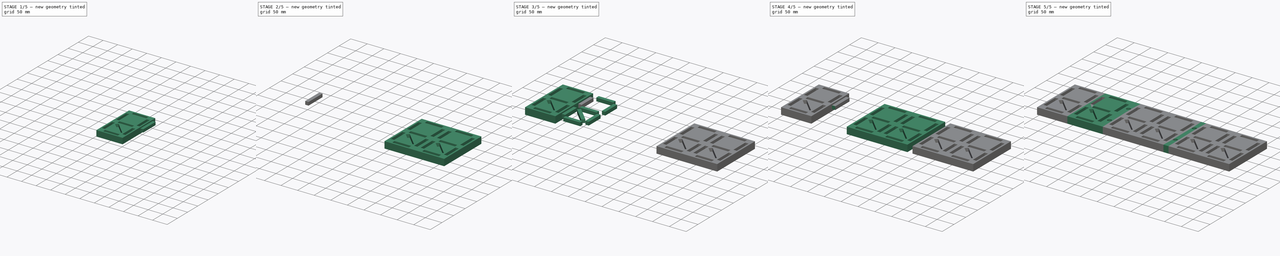
[diagram: build sequence overview — one tinted view per stage of 5, left to right]
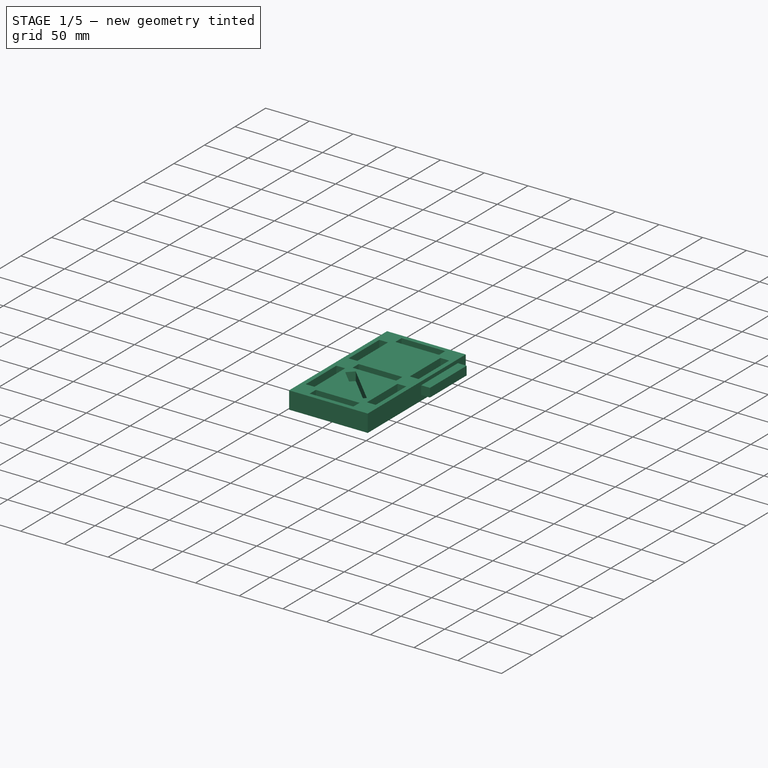
[diagram: stage 1 of 5 — iso view after this stage's code; geometry added in this stage tinted green]
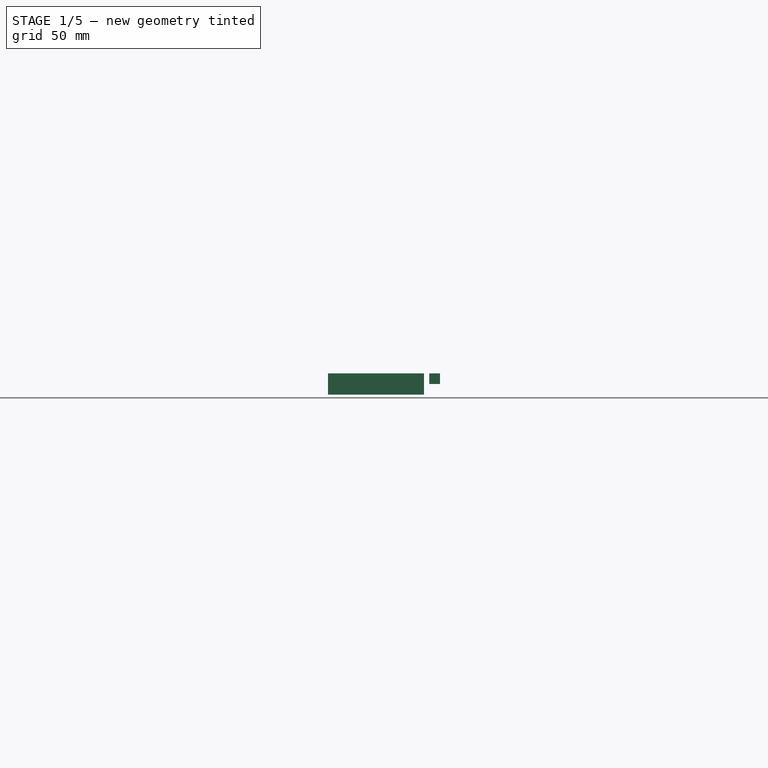
[diagram: stage 1 of 5 — front view after this stage's code; geometry added in this stage tinted green]
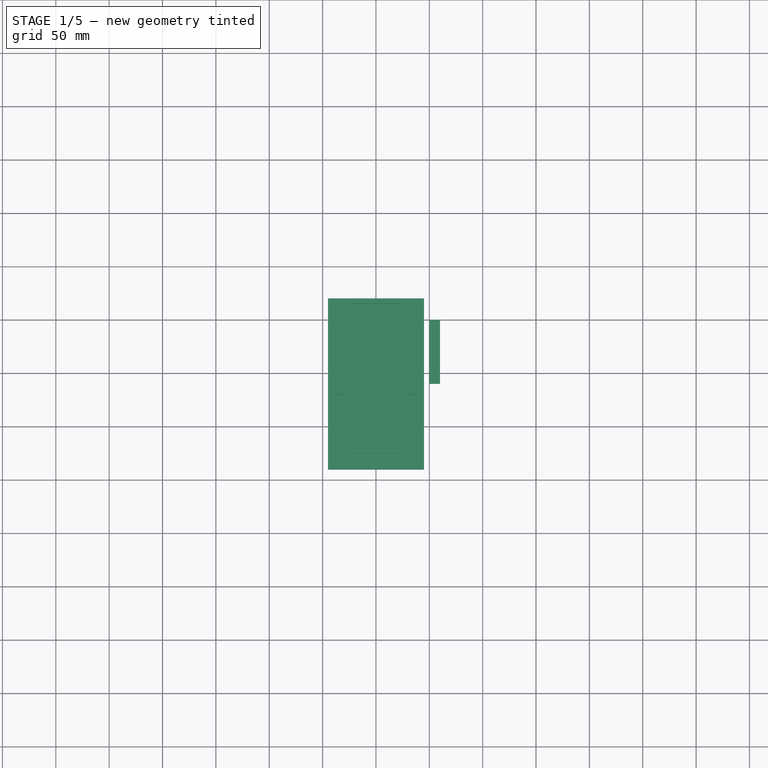
[diagram: stage 1 of 5 — top view after this stage's code; geometry added in this stage tinted green]
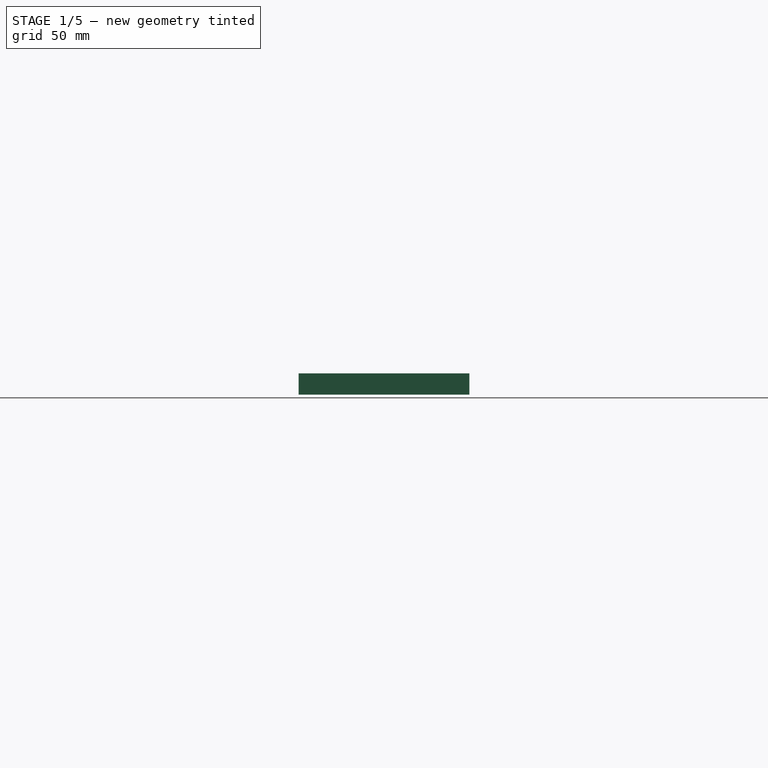
[diagram: stage 1 of 5 — right view after this stage's code; geometry added in this stage tinted green]
FCSTD DOCUMENT  (FreeCAD 0.17R9944 (Git))
Label: Sez_Clock
License: All rights reserved
LicenseURL: http://en.wikipedia.org/wiki/All_rights_reserved
objects: Sketcher::SketchObject×56, PartDesign::Pad×56, PartDesign::Body×56, App::MeasureDistance×13, Part::MultiFuse×10, Part::Cut×6, Drawing::FeatureViewPart×3, App::Part×2, Drawing::FeaturePage×1
note: 240 computed .brp shape members not serialized (recipe doc carries the construction recipe); baked Part::Feature solids carry a one-line shape summary decoded from their .brp

FEATURE [PartDesign::Body] Body042  label="SegmentF004"
  Group = -> [Sketch042,Pad042]
  Origin = -> BodyOrigin036
  Placement = pos=(70,-70,0) rot=(0,0,1;0rad)
  Tip = -> Pad042
FEATURE [Sketcher::SketchObject] Sketch043
  MapMode = 5
  Support = -> [XY_Plane045]
  sketch-geometry (4):
    g0: LineSegment StartX=0 StartY=0 StartZ=0 EndX=10.0441 EndY=0 EndZ=0
    g1: LineSegment StartX=10.0441 StartY=0 StartZ=0 EndX=10.0441 EndY=-50.0124 EndZ=0
    g2: LineSegment StartX=10.0441 StartY=-50.0124 StartZ=0 EndX=0 EndY=-50.0124 EndZ=0
    g3: LineSegment StartX=0 StartY=-50.0124 StartZ=0 EndX=0 EndY=0 EndZ=0
  constraints (9):
    c: Coincident(g0,g1)
    c: Coincident(g1,g2)
    c: Coincident(g2,g3)
    c: Coincident(g3,g0)
    c: Horizontal(g0)
    c: Horizontal(g2)
    c: Vertical(g1)
    c: Vertical(g3)
    c: Coincident(g0,g-1)
FEATURE [PartDesign::Pad] Pad043
  Length = 10
  Length2 = 100
  Profile = -> Sketch043
  Type = 0
FEATURE [PartDesign::Body] Body043  label="SegmentD004"
  Group = -> [Sketch043,Pad043]
  Origin = -> BodyOrigin037
  Placement = pos=(15,-65,0) rot=(0,0,1;1.5708rad)
  Tip = -> Pad043
FEATURE [Sketcher::SketchObject] Sketch044
  MapMode = 5
  Support = -> [XY_Plane046]
  sketch-geometry (4):
    g0: LineSegment StartX=0 StartY=0 StartZ=0 EndX=10.0441 EndY=0 EndZ=0
    g1: LineSegment StartX=10.0441 StartY=0 StartZ=0 EndX=10.0441 EndY=-50.0124 EndZ=0
    g2: LineSegment StartX=10.0441 StartY=-50.0124 StartZ=0 EndX=0 EndY=-50.0124 EndZ=0
    g3: LineSegment StartX=0 StartY=-50.0124 StartZ=0 EndX=0 EndY=0 EndZ=0
  constraints (9):
    c: Coincident(g0,g1)
    c: Coincident(g1,g2)
    c: Coincident(g2,g3)
    c: Coincident(g3,g0)
    c: Horizontal(g0)
    c: Horizontal(g2)
    c: Vertical(g1)
    c: Vertical(g3)
    c: Coincident(g0,g-1)
FEATURE [PartDesign::Pad] Pad044
  Length = 10
  Length2 = 100
  Profile = -> Sketch044
  Type = 0
FEATURE [PartDesign::Body] Body044  label="SegmentG004"
  Group = -> [Sketch044,Pad044]
  Origin = -> BodyOrigin038
  Placement = pos=(15,-135,0) rot=(0,0,1;1.5708rad)
  Tip = -> Pad044
FEATURE [Sketcher::SketchObject] Sketch045
  MapMode = 5
  Support = -> [XY_Plane047]
  sketch-geometry (4):
    g0: LineSegment StartX=0 StartY=0 StartZ=0 EndX=10.0441 EndY=0 EndZ=0
    g1: LineSegment StartX=10.0441 StartY=0 StartZ=0 EndX=10.0441 EndY=-59.966 EndZ=0
    g2: LineSegment StartX=10.0441 StartY=-59.966 StartZ=0 EndX=0 EndY=-59.966 EndZ=0
    g3: LineSegment StartX=0 StartY=-59.966 StartZ=0 EndX=0 EndY=0 EndZ=0
  constraints (9):
    c: Coincident(g0,g1)
    c: Coincident(g1,g2)
    c: Coincident(g2,g3)
    c: Coincident(g3,g0)
    c: Horizontal(g0)
    c: Horizontal(g2)
    c: Vertical(g1)
    c: Vertical(g3)
    c: Coincident(g0,g-1)
FEATURE [PartDesign::Pad] Pad045
  Length = 10
  Length2 = 100
  Profile = -> Sketch045
  Type = 0
FEATURE [Sketcher::SketchObject] Sketch047
  MapMode = 5
  Support = -> [XY_Plane049]
  sketch-geometry (4):
    g0: LineSegment StartX=0 StartY=0 StartZ=0 EndX=10.0441 EndY=0 EndZ=0
    g1: LineSegment StartX=10.0441 StartY=0 StartZ=0 EndX=10.0441 EndY=-50.0124 EndZ=0
    g2: LineSegment StartX=10.0441 StartY=-50.0124 StartZ=0 EndX=0 EndY=-50.0124 EndZ=0
    g3: LineSegment StartX=0 StartY=-50.0124 StartZ=0 EndX=0 EndY=0 EndZ=0
  constraints (9):
    c: Coincident(g0,g1)
    c: Coincident(g1,g2)
    c: Coincident(g2,g3)
    c: Coincident(g3,g0)
    c: Horizontal(g0)
    c: Horizontal(g2)
    c: Vertical(g1)
    c: Vertical(g3)
    c: Coincident(g0,g-1)
FEATURE [PartDesign::Pad] Pad047
  Length = 10
  Length2 = 100
  Profile = -> Sketch047
  Type = 0
FEATURE [PartDesign::Body] Body047  label="SegmentB005"
  Group = -> [Sketch047,Pad047]
  Origin = -> BodyOrigin040
  Tip = -> Pad047
FEATURE [Sketcher::SketchObject] Sketch048
  MapMode = 5
  Support = -> [XY_Plane050]
  sketch-geometry (4):
    g0: LineSegment StartX=0 StartY=0 StartZ=0 EndX=10.0441 EndY=0 EndZ=0
    g1: LineSegment StartX=10.0441 StartY=0 StartZ=0 EndX=10.0441 EndY=-50.0124 EndZ=0
    g2: LineSegment StartX=10.0441 StartY=-50.0124 StartZ=0 EndX=0 EndY=-50.0124 EndZ=0
    g3: LineSegment StartX=0 StartY=-50.0124 StartZ=0 EndX=0 EndY=0 EndZ=0
  constraints (9):
    c: Coincident(g0,g1)
    c: Coincident(g1,g2)
    c: Coincident(g2,g3)
    c: Coincident(g3,g0)
    c: Horizontal(g0)
    c: Horizontal(g2)
    c: Vertical(g1)
    c: Vertical(g3)
    c: Coincident(g0,g-1)
FEATURE [PartDesign::Pad] Pad048
  Length = 10
  Length2 = 100
  Profile = -> Sketch048
  Type = 0
FEATURE [PartDesign::Body] Body048  label="SegmentA005"
  Group = -> [Sketch048,Pad048]
  Origin = -> BodyOrigin041
  Placement = pos=(15,5,0) rot=(0,0,1;1.5708rad)
  Tip = -> Pad048
FEATURE [Sketcher::SketchObject] Sketch049
  MapMode = 5
  Support = -> [XY_Plane051]
  sketch-geometry (4):
    g0: LineSegment StartX=0 StartY=0 StartZ=0 EndX=10.0441 EndY=0 EndZ=0
    g1: LineSegment StartX=10.0441 StartY=0 StartZ=0 EndX=10.0441 EndY=-50.0124 EndZ=0
    g2: LineSegment StartX=10.0441 StartY=-50.0124 StartZ=0 EndX=0 EndY=-50.0124 EndZ=0
    g3: LineSegment StartX=0 StartY=-50.0124 StartZ=0 EndX=0 EndY=0 EndZ=0
  constraints (9):
    c: Coincident(g0,g1)
    c: Coincident(g1,g2)
    c: Coincident(g2,g3)
    c: Coincident(g3,g0)
    c: Horizontal(g0)
    c: Horizontal(g2)
    c: Vertical(g1)
    c: Vertical(g3)
    c: Coincident(g0,g-1)
FEATURE [PartDesign::Pad] Pad049
  Length = 10
  Length2 = 100
  Profile = -> Sketch049
  Type = 0
FEATURE [PartDesign::Body] Body049  label="SegmentC005"
  Group = -> [Sketch049,Pad049]
  Origin = -> BodyOrigin042
  Placement = pos=(70,0,0) rot=(0,0,1;0rad)
  Tip = -> Pad049
FEATURE [Sketcher::SketchObject] Sketch050
  MapMode = 5
  Support = -> [XY_Plane052]
  sketch-geometry (4):
    g0: LineSegment StartX=0 StartY=0 StartZ=0 EndX=10.0441 EndY=0 EndZ=0
    g1: LineSegment StartX=10.0441 StartY=0 StartZ=0 EndX=10.0441 EndY=-50.0124 EndZ=0
    g2: LineSegment StartX=10.0441 StartY=-50.0124 StartZ=0 EndX=0 EndY=-50.0124 EndZ=0
    g3: LineSegment StartX=0 StartY=-50.0124 StartZ=0 EndX=0 EndY=0 EndZ=0
  constraints (9):
    c: Coincident(g0,g1)
    c: Coincident(g1,g2)
    c: Coincident(g2,g3)
    c: Coincident(g3,g0)
    c: Horizontal(g0)
    c: Horizontal(g2)
    c: Vertical(g1)
    c: Vertical(g3)
    c: Coincident(g0,g-1)
FEATURE [PartDesign::Pad] Pad050
  Length = 10
  Length2 = 100
  Profile = -> Sketch050
  Type = 0
FEATURE [PartDesign::Body] Body050  label="SegmentE005"
  Group = -> [Sketch050,Pad050]
  Origin = -> BodyOrigin043
  Placement = pos=(0,-70,0) rot=(0,0,1;0rad)
  Tip = -> Pad050
FEATURE [Sketcher::SketchObject] Sketch051
  MapMode = 5
  Support = -> [XY_Plane053]
  sketch-geometry (4):
    g0: LineSegment StartX=0 StartY=0 StartZ=0 EndX=10.0441 EndY=0 EndZ=0
    g1: LineSegment StartX=10.0441 StartY=0 StartZ=0 EndX=10.0441 EndY=-50.0124 EndZ=0
    g2: LineSegment StartX=10.0441 StartY=-50.0124 StartZ=0 EndX=0 EndY=-50.0124 EndZ=0
    g3: LineSegment StartX=0 StartY=-50.0124 StartZ=0 EndX=0 EndY=0 EndZ=0
  constraints (9):
    c: Coincident(g0,g1)
    c: Coincident(g1,g2)
    c: Coincident(g2,g3)
    c: Coincident(g3,g0)
    c: Horizontal(g0)
    c: Horizontal(g2)
    c: Vertical(g1)
    c: Vertical(g3)
    c: Coincident(g0,g-1)
FEATURE [PartDesign::Pad] Pad051
  Length = 10
  Length2 = 100
  Profile = -> Sketch051
  Type = 0
FEATURE [PartDesign::Body] Body051  label="SegmentF005"
  Group = -> [Sketch051,Pad051]
  Origin = -> BodyOrigin044
  Placement = pos=(70,-70,0) rot=(0,0,1;0rad)
  Tip = -> Pad051
FEATURE [Sketcher::SketchObject] Sketch052
  MapMode = 5
  Support = -> [XY_Plane054]
  sketch-geometry (4):
    g0: LineSegment StartX=0 StartY=0 StartZ=0 EndX=10.0441 EndY=0 EndZ=0
    g1: LineSegment StartX=10.0441 StartY=0 StartZ=0 EndX=10.0441 EndY=-50.0124 EndZ=0
    g2: LineSegment StartX=10.0441 StartY=-50.0124 StartZ=0 EndX=0 EndY=-50.0124 EndZ=0
    g3: LineSegment StartX=0 StartY=-50.0124 StartZ=0 EndX=0 EndY=0 EndZ=0
  constraints (9):
    c: Coincident(g0,g1)
    c: Coincident(g1,g2)
    c: Coincident(g2,g3)
    c: Coincident(g3,g0)
    c: Horizontal(g0)
    c: Horizontal(g2)
    c: Vertical(g1)
    c: Vertical(g3)
    c: Coincident(g0,g-1)
FEATURE [PartDesign::Pad] Pad052
  Length = 10
  Length2 = 100
  Profile = -> Sketch052
  Type = 0
FEATURE [PartDesign::Body] Body052  label="SegmentD005"
  Group = -> [Sketch052,Pad052]
  Origin = -> BodyOrigin045
  Placement = pos=(15,-65,0) rot=(0,0,1;1.5708rad)
  Tip = -> Pad052
FEATURE [Sketcher::SketchObject] Sketch053
  MapMode = 5
  Support = -> [XY_Plane055]
  sketch-geometry (4):
    g0: LineSegment StartX=0 StartY=0 StartZ=0 EndX=10.0441 EndY=0 EndZ=0
    g1: LineSegment StartX=10.0441 StartY=0 StartZ=0 EndX=10.0441 EndY=-50.0124 EndZ=0
    g2: LineSegment StartX=10.0441 StartY=-50.0124 StartZ=0 EndX=0 EndY=-50.0124 EndZ=0
    g3: LineSegment StartX=0 StartY=-50.0124 StartZ=0 EndX=0 EndY=0 EndZ=0
  constraints (9):
    c: Coincident(g0,g1)
    c: Coincident(g1,g2)
    c: Coincident(g2,g3)
    c: Coincident(g3,g0)
    c: Horizontal(g0)
    c: Horizontal(g2)
    c: Vertical(g1)
    c: Vertical(g3)
    c: Coincident(g0,g-1)
FEATURE [PartDesign::Pad] Pad053
  Length = 10
  Length2 = 100
  Profile = -> Sketch053
  Type = 0
FEATURE [PartDesign::Body] Body053  label="SegmentG005"
  Group = -> [Sketch053,Pad053]
  Origin = -> BodyOrigin046
  Placement = pos=(15,-135,0) rot=(0,0,1;1.5708rad)
  Tip = -> Pad053
FEATURE [Sketcher::SketchObject] Sketch054
  MapMode = 5
  Support = -> [XY_Plane056]
  sketch-geometry (4):
    g0: LineSegment StartX=0 StartY=0 StartZ=0 EndX=10.0441 EndY=0 EndZ=0
    g1: LineSegment StartX=10.0441 StartY=0 StartZ=0 EndX=10.0441 EndY=-59.966 EndZ=0
    g2: LineSegment StartX=10.0441 StartY=-59.966 StartZ=0 EndX=0 EndY=-59.966 EndZ=0
    g3: LineSegment StartX=0 StartY=-59.966 StartZ=0 EndX=0 EndY=0 EndZ=0
  constraints (9):
    c: Coincident(g0,g1)
    c: Coincident(g1,g2)
    c: Coincident(g2,g3)
    c: Coincident(g3,g0)
    c: Horizontal(g0)
    c: Horizontal(g2)
    c: Vertical(g1)
    c: Vertical(g3)
    c: Coincident(g0,g-1)
FEATURE [PartDesign::Pad] Pad054
  Length = 10
  Length2 = 100
  Profile = -> Sketch054
  Type = 0
FEATURE [PartDesign::Body] Body054  label="SegmentH005"
  Group = -> [Sketch054,Pad054]
  Origin = -> BodyOrigin047
  Placement = pos=(15,-77,0) rot=(0,0,1;0.785398rad)
  Tip = -> Pad054
FEATURE [Sketcher::SketchObject] Sketch055
  MapMode = 5
  Support = -> [XY_Plane057]
  sketch-geometry (4):
    g0: LineSegment StartX=-4.9584 StartY=19.963 StartZ=0 EndX=85.0181 EndY=19.963 EndZ=0
    g1: LineSegment StartX=85.0181 StartY=19.963 StartZ=0 EndX=85.0181 EndY=-140.079 EndZ=0
    g2: LineSegment StartX=85.0181 StartY=-140.079 StartZ=0 EndX=-4.9584 EndY=-140.079 EndZ=0
    g3: LineSegment StartX=-4.9584 StartY=-140.079 StartZ=0 EndX=-4.9584 EndY=19.963 EndZ=0
  constraints (8):
    c: Coincident(g0,g1)
    c: Coincident(g1,g2)
    c: Coincident(g2,g3)
    c: Coincident(g3,g0)
    c: Horizontal(g0)
    c: Horizontal(g2)
    c: Vertical(g1)
    c: Vertical(g3)
FEATURE [PartDesign::Pad] Pad055
  Length = 20
  Length2 = 100
  Profile = -> Sketch055
  Type = 0
FEATURE [PartDesign::Body] Body055  label="Corps005"
  Group = -> [Sketch055,Pad055]
  Origin = -> Body008Origin005
  Placement = pos=(0,0,-10) rot=(0,0,1;0rad)
  Tip = -> Pad055
FEATURE [Part::MultiFuse] Fusion007
  Shapes = -> [Body047,Body048,Body049,Body050,Body051,Body052,Body053,Body054]
FEATURE [Part::Cut] Cut005  label="Digit10h002"
  Base = -> Body055
  Placement = pos=(-90,0,0) rot=(0,0,1;0rad)
  Tool = -> Fusion007
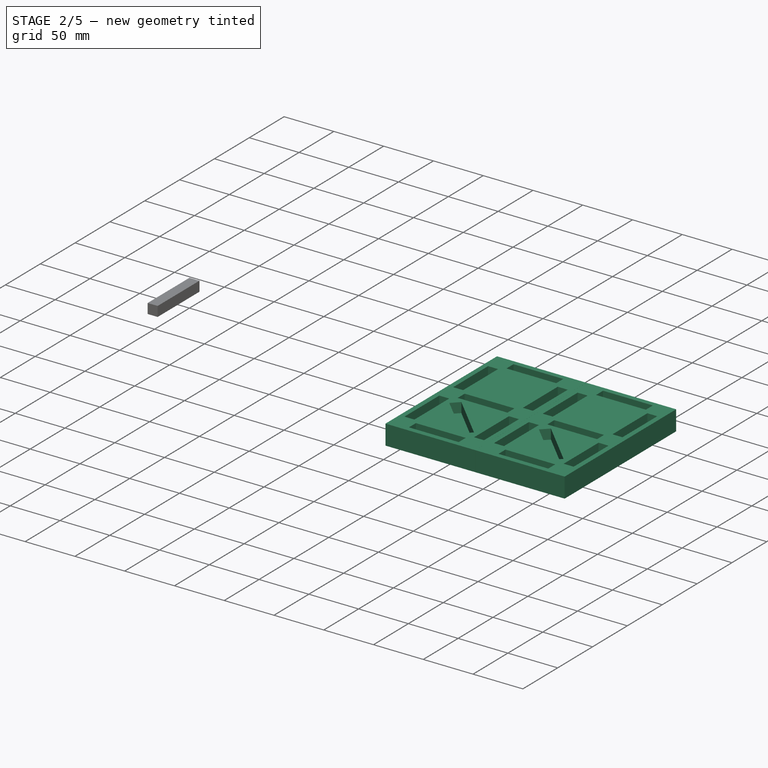
[diagram: stage 2 of 5 — iso view after this stage's code; geometry added in this stage tinted green]
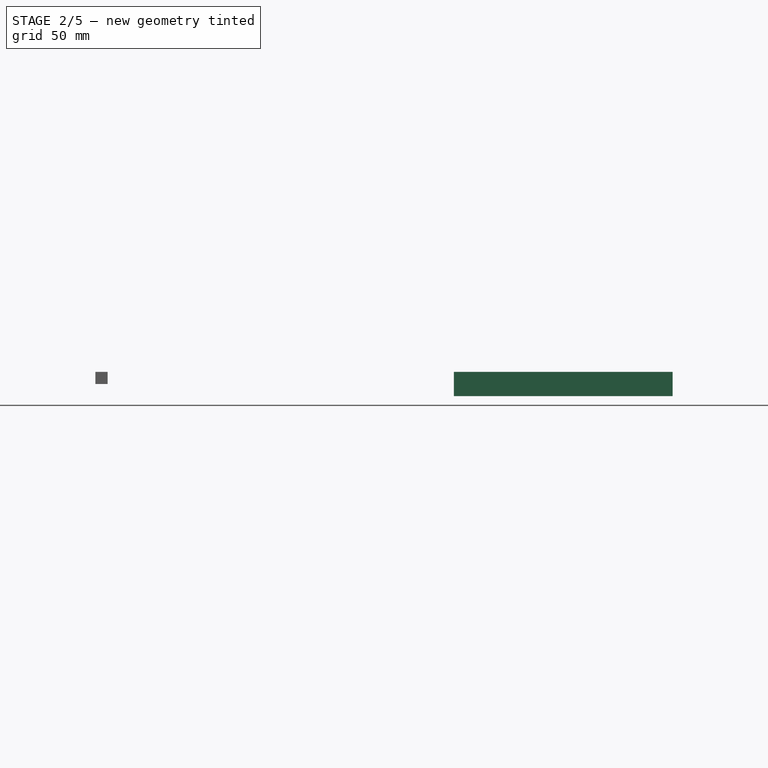
[diagram: stage 2 of 5 — front view after this stage's code; geometry added in this stage tinted green]
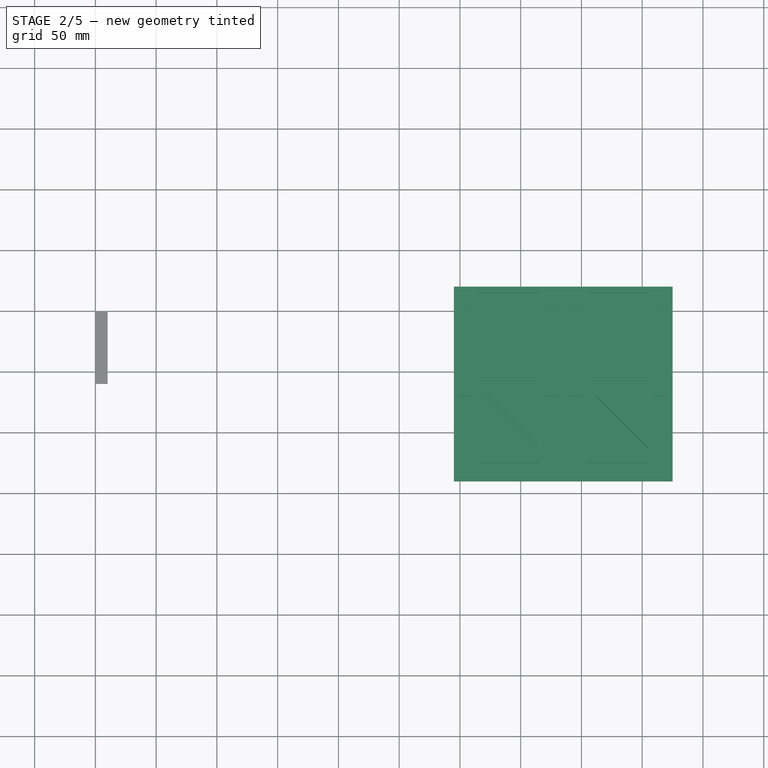
[diagram: stage 2 of 5 — top view after this stage's code; geometry added in this stage tinted green]
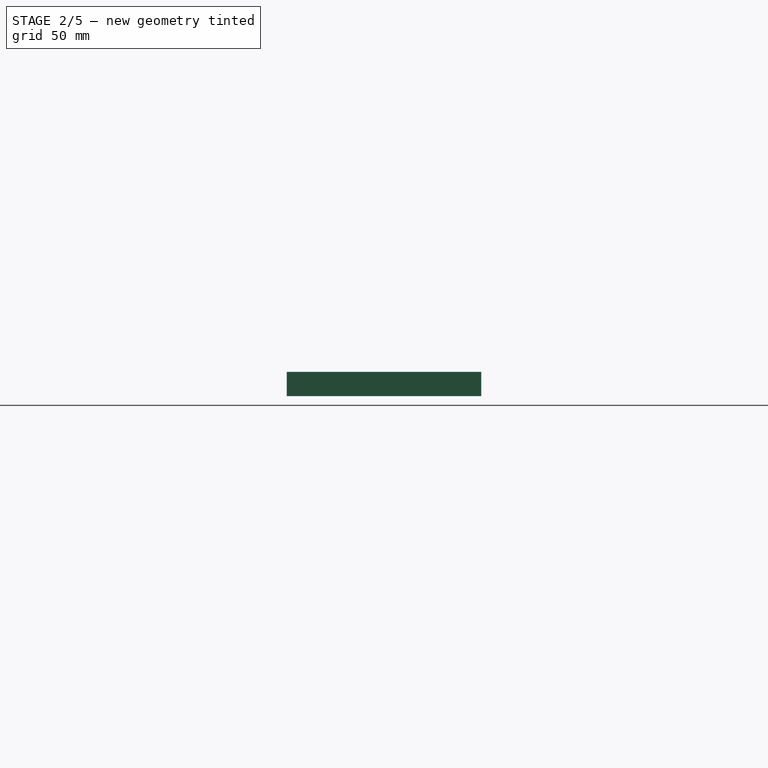
[diagram: stage 2 of 5 — right view after this stage's code; geometry added in this stage tinted green]
FEATURE [PartDesign::Body] Body030  label="SegmentA003"
  Group = -> [Sketch030,Pad030]
  Origin = -> BodyOrigin025
  Placement = pos=(15,5,0) rot=(0,0,1;1.5708rad)
  Tip = -> Pad030
FEATURE [Sketcher::SketchObject] Sketch031
  MapMode = 5
  Support = -> [XY_Plane033]
  sketch-geometry (4):
    g0: LineSegment StartX=0 StartY=0 StartZ=0 EndX=10.0441 EndY=0 EndZ=0
    g1: LineSegment StartX=10.0441 StartY=0 StartZ=0 EndX=10.0441 EndY=-50.0124 EndZ=0
    g2: LineSegment StartX=10.0441 StartY=-50.0124 StartZ=0 EndX=0 EndY=-50.0124 EndZ=0
    g3: LineSegment StartX=0 StartY=-50.0124 StartZ=0 EndX=0 EndY=0 EndZ=0
  constraints (9):
    c: Coincident(g0,g1)
    c: Coincident(g1,g2)
    c: Coincident(g2,g3)
    c: Coincident(g3,g0)
    c: Horizontal(g0)
    c: Horizontal(g2)
    c: Vertical(g1)
    c: Vertical(g3)
    c: Coincident(g0,g-1)
FEATURE [PartDesign::Pad] Pad031
  Length = 10
  Length2 = 100
  Profile = -> Sketch031
  Type = 0
FEATURE [PartDesign::Body] Body031  label="SegmentC003"
  Group = -> [Sketch031,Pad031]
  Origin = -> BodyOrigin026
  Placement = pos=(70,0,0) rot=(0,0,1;0rad)
  Tip = -> Pad031
FEATURE [Sketcher::SketchObject] Sketch032
  MapMode = 5
  Support = -> [XY_Plane034]
  sketch-geometry (4):
    g0: LineSegment StartX=0 StartY=0 StartZ=0 EndX=10.0441 EndY=0 EndZ=0
    g1: LineSegment StartX=10.0441 StartY=0 StartZ=0 EndX=10.0441 EndY=-50.0124 EndZ=0
    g2: LineSegment StartX=10.0441 StartY=-50.0124 StartZ=0 EndX=0 EndY=-50.0124 EndZ=0
    g3: LineSegment StartX=0 StartY=-50.0124 StartZ=0 EndX=0 EndY=0 EndZ=0
  constraints (9):
    c: Coincident(g0,g1)
    c: Coincident(g1,g2)
    c: Coincident(g2,g3)
    c: Coincident(g3,g0)
    c: Horizontal(g0)
    c: Horizontal(g2)
    c: Vertical(g1)
    c: Vertical(g3)
    c: Coincident(g0,g-1)
FEATURE [PartDesign::Pad] Pad032
  Length = 10
  Length2 = 100
  Profile = -> Sketch032
  Type = 0
FEATURE [PartDesign::Body] Body032  label="SegmentE003"
  Group = -> [Sketch032,Pad032]
  Origin = -> BodyOrigin027
  Placement = pos=(0,-70,0) rot=(0,0,1;0rad)
  Tip = -> Pad032
FEATURE [Sketcher::SketchObject] Sketch033
  MapMode = 5
  Support = -> [XY_Plane035]
  sketch-geometry (4):
    g0: LineSegment StartX=0 StartY=0 StartZ=0 EndX=10.0441 EndY=0 EndZ=0
    g1: LineSegment StartX=10.0441 StartY=0 StartZ=0 EndX=10.0441 EndY=-50.0124 EndZ=0
    g2: LineSegment StartX=10.0441 StartY=-50.0124 StartZ=0 EndX=0 EndY=-50.0124 EndZ=0
    g3: LineSegment StartX=0 StartY=-50.0124 StartZ=0 EndX=0 EndY=0 EndZ=0
  constraints (9):
    c: Coincident(g0,g1)
    c: Coincident(g1,g2)
    c: Coincident(g2,g3)
    c: Coincident(g3,g0)
    c: Horizontal(g0)
    c: Horizontal(g2)
    c: Vertical(g1)
    c: Vertical(g3)
    c: Coincident(g0,g-1)
FEATURE [PartDesign::Pad] Pad033
  Length = 10
  Length2 = 100
  Profile = -> Sketch033
  Type = 0
FEATURE [PartDesign::Body] Body033  label="SegmentF003"
  Group = -> [Sketch033,Pad033]
  Origin = -> BodyOrigin028
  Placement = pos=(70,-70,0) rot=(0,0,1;0rad)
  Tip = -> Pad033
FEATURE [Sketcher::SketchObject] Sketch034
  MapMode = 5
  Support = -> [XY_Plane036]
  sketch-geometry (4):
    g0: LineSegment StartX=0 StartY=0 StartZ=0 EndX=10.0441 EndY=0 EndZ=0
    g1: LineSegment StartX=10.0441 StartY=0 StartZ=0 EndX=10.0441 EndY=-50.0124 EndZ=0
    g2: LineSegment StartX=10.0441 StartY=-50.0124 StartZ=0 EndX=0 EndY=-50.0124 EndZ=0
    g3: LineSegment StartX=0 StartY=-50.0124 StartZ=0 EndX=0 EndY=0 EndZ=0
  constraints (9):
    c: Coincident(g0,g1)
    c: Coincident(g1,g2)
    c: Coincident(g2,g3)
    c: Coincident(g3,g0)
    c: Horizontal(g0)
    c: Horizontal(g2)
    c: Vertical(g1)
    c: Vertical(g3)
    c: Coincident(g0,g-1)
FEATURE [PartDesign::Pad] Pad034
  Length = 10
  Length2 = 100
  Profile = -> Sketch034
  Type = 0
FEATURE [PartDesign::Body] Body034  label="SegmentD003"
  Group = -> [Sketch034,Pad034]
  Origin = -> BodyOrigin029
  Placement = pos=(15,-65,0) rot=(0,0,1;1.5708rad)
  Tip = -> Pad034
FEATURE [Sketcher::SketchObject] Sketch035
  MapMode = 5
  Support = -> [XY_Plane037]
  sketch-geometry (4):
    g0: LineSegment StartX=0 StartY=0 StartZ=0 EndX=10.0441 EndY=0 EndZ=0
    g1: LineSegment StartX=10.0441 StartY=0 StartZ=0 EndX=10.0441 EndY=-50.0124 EndZ=0
    g2: LineSegment StartX=10.0441 StartY=-50.0124 StartZ=0 EndX=0 EndY=-50.0124 EndZ=0
    g3: LineSegment StartX=0 StartY=-50.0124 StartZ=0 EndX=0 EndY=0 EndZ=0
  constraints (9):
    c: Coincident(g0,g1)
    c: Coincident(g1,g2)
    c: Coincident(g2,g3)
    c: Coincident(g3,g0)
    c: Horizontal(g0)
    c: Horizontal(g2)
    c: Vertical(g1)
    c: Vertical(g3)
    c: Coincident(g0,g-1)
FEATURE [PartDesign::Pad] Pad035
  Length = 10
  Length2 = 100
  Profile = -> Sketch035
  Type = 0
FEATURE [PartDesign::Body] Body035  label="SegmentG003"
  Group = -> [Sketch035,Pad035]
  Origin = -> BodyOrigin030
  Placement = pos=(15,-135,0) rot=(0,0,1;1.5708rad)
  Tip = -> Pad035
FEATURE [Sketcher::SketchObject] Sketch036
  MapMode = 5
  Support = -> [XY_Plane038]
  sketch-geometry (4):
    g0: LineSegment StartX=0 StartY=0 StartZ=0 EndX=10.0441 EndY=0 EndZ=0
    g1: LineSegment StartX=10.0441 StartY=0 StartZ=0 EndX=10.0441 EndY=-59.966 EndZ=0
    g2: LineSegment StartX=10.0441 StartY=-59.966 StartZ=0 EndX=0 EndY=-59.966 EndZ=0
    g3: LineSegment StartX=0 StartY=-59.966 StartZ=0 EndX=0 EndY=0 EndZ=0
  constraints (9):
    c: Coincident(g0,g1)
    c: Coincident(g1,g2)
    c: Coincident(g2,g3)
    c: Coincident(g3,g0)
    c: Horizontal(g0)
    c: Horizontal(g2)
    c: Vertical(g1)
    c: Vertical(g3)
    c: Coincident(g0,g-1)
FEATURE [PartDesign::Pad] Pad036
  Length = 10
  Length2 = 100
  Profile = -> Sketch036
  Type = 0
FEATURE [Sketcher::SketchObject] Sketch038
  MapMode = 5
  Support = -> [XY_Plane040]
  sketch-geometry (4):
    g0: LineSegment StartX=0 StartY=0 StartZ=0 EndX=10.0441 EndY=0 EndZ=0
    g1: LineSegment StartX=10.0441 StartY=0 StartZ=0 EndX=10.0441 EndY=-50.0124 EndZ=0
    g2: LineSegment StartX=10.0441 StartY=-50.0124 StartZ=0 EndX=0 EndY=-50.0124 EndZ=0
    g3: LineSegment StartX=0 StartY=-50.0124 StartZ=0 EndX=0 EndY=0 EndZ=0
  constraints (9):
    c: Coincident(g0,g1)
    c: Coincident(g1,g2)
    c: Coincident(g2,g3)
    c: Coincident(g3,g0)
    c: Horizontal(g0)
    c: Horizontal(g2)
    c: Vertical(g1)
    c: Vertical(g3)
    c: Coincident(g0,g-1)
FEATURE [PartDesign::Pad] Pad038
  Length = 10
  Length2 = 100
  Profile = -> Sketch038
  Type = 0
FEATURE [PartDesign::Body] Body038  label="SegmentB004"
  Group = -> [Sketch038,Pad038]
  Origin = -> BodyOrigin032
  Tip = -> Pad038
FEATURE [Sketcher::SketchObject] Sketch039
  MapMode = 5
  Support = -> [XY_Plane041]
  sketch-geometry (4):
    g0: LineSegment StartX=0 StartY=0 StartZ=0 EndX=10.0441 EndY=0 EndZ=0
    g1: LineSegment StartX=10.0441 StartY=0 StartZ=0 EndX=10.0441 EndY=-50.0124 EndZ=0
    g2: LineSegment StartX=10.0441 StartY=-50.0124 StartZ=0 EndX=0 EndY=-50.0124 EndZ=0
    g3: LineSegment StartX=0 StartY=-50.0124 StartZ=0 EndX=0 EndY=0 EndZ=0
  constraints (9):
    c: Coincident(g0,g1)
    c: Coincident(g1,g2)
    c: Coincident(g2,g3)
    c: Coincident(g3,g0)
    c: Horizontal(g0)
    c: Horizontal(g2)
    c: Vertical(g1)
    c: Vertical(g3)
    c: Coincident(g0,g-1)
FEATURE [PartDesign::Pad] Pad039
  Length = 10
  Length2 = 100
  Profile = -> Sketch039
  Type = 0
FEATURE [PartDesign::Body] Body039  label="SegmentA004"
  Group = -> [Sketch039,Pad039]
  Origin = -> BodyOrigin033
  Placement = pos=(15,5,0) rot=(0,0,1;1.5708rad)
  Tip = -> Pad039
FEATURE [Sketcher::SketchObject] Sketch040
  MapMode = 5
  Support = -> [XY_Plane042]
  sketch-geometry (4):
    g0: LineSegment StartX=0 StartY=0 StartZ=0 EndX=10.0441 EndY=0 EndZ=0
    g1: LineSegment StartX=10.0441 StartY=0 StartZ=0 EndX=10.0441 EndY=-50.0124 EndZ=0
    g2: LineSegment StartX=10.0441 StartY=-50.0124 StartZ=0 EndX=0 EndY=-50.0124 EndZ=0
    g3: LineSegment StartX=0 StartY=-50.0124 StartZ=0 EndX=0 EndY=0 EndZ=0
  constraints (9):
    c: Coincident(g0,g1)
    c: Coincident(g1,g2)
    c: Coincident(g2,g3)
    c: Coincident(g3,g0)
    c: Horizontal(g0)
    c: Horizontal(g2)
    c: Vertical(g1)
    c: Vertical(g3)
    c: Coincident(g0,g-1)
FEATURE [PartDesign::Pad] Pad040
  Length = 10
  Length2 = 100
  Profile = -> Sketch040
  Type = 0
FEATURE [PartDesign::Body] Body040  label="SegmentC004"
  Group = -> [Sketch040,Pad040]
  Origin = -> BodyOrigin034
  Placement = pos=(70,0,0) rot=(0,0,1;0rad)
  Tip = -> Pad040
FEATURE [Sketcher::SketchObject] Sketch041
  MapMode = 5
  Support = -> [XY_Plane043]
  sketch-geometry (4):
    g0: LineSegment StartX=0 StartY=0 StartZ=0 EndX=10.0441 EndY=0 EndZ=0
    g1: LineSegment StartX=10.0441 StartY=0 StartZ=0 EndX=10.0441 EndY=-50.0124 EndZ=0
    g2: LineSegment StartX=10.0441 StartY=-50.0124 StartZ=0 EndX=0 EndY=-50.0124 EndZ=0
    g3: LineSegment StartX=0 StartY=-50.0124 StartZ=0 EndX=0 EndY=0 EndZ=0
  constraints (9):
    c: Coincident(g0,g1)
    c: Coincident(g1,g2)
    c: Coincident(g2,g3)
    c: Coincident(g3,g0)
    c: Horizontal(g0)
    c: Horizontal(g2)
    c: Vertical(g1)
    c: Vertical(g3)
    c: Coincident(g0,g-1)
FEATURE [PartDesign::Pad] Pad041
  Length = 10
  Length2 = 100
  Profile = -> Sketch041
  Type = 0
FEATURE [PartDesign::Body] Body041  label="SegmentE004"
  Group = -> [Sketch041,Pad041]
  Origin = -> BodyOrigin035
  Placement = pos=(0,-70,0) rot=(0,0,1;0rad)
  Tip = -> Pad041
FEATURE [Sketcher::SketchObject] Sketch042
  MapMode = 5
  Support = -> [XY_Plane044]
  sketch-geometry (4):
    g0: LineSegment StartX=0 StartY=0 StartZ=0 EndX=10.0441 EndY=0 EndZ=0
    g1: LineSegment StartX=10.0441 StartY=0 StartZ=0 EndX=10.0441 EndY=-50.0124 EndZ=0
    g2: LineSegment StartX=10.0441 StartY=-50.0124 StartZ=0 EndX=0 EndY=-50.0124 EndZ=0
    g3: LineSegment StartX=0 StartY=-50.0124 StartZ=0 EndX=0 EndY=0 EndZ=0
  constraints (9):
    c: Coincident(g0,g1)
    c: Coincident(g1,g2)
    c: Coincident(g2,g3)
    c: Coincident(g3,g0)
    c: Horizontal(g0)
    c: Horizontal(g2)
    c: Vertical(g1)
    c: Vertical(g3)
    c: Coincident(g0,g-1)
FEATURE [PartDesign::Pad] Pad042
  Length = 10
  Length2 = 100
  Profile = -> Sketch042
  Type = 0
FEATURE [PartDesign::Body] Body045  label="SegmentH004"
  Group = -> [Sketch045,Pad045]
  Origin = -> BodyOrigin039
  Placement = pos=(15,-77,0) rot=(0,0,1;0.785398rad)
  Tip = -> Pad045
FEATURE [Sketcher::SketchObject] Sketch046
  MapMode = 5
  Support = -> [XY_Plane048]
  sketch-geometry (4):
    g0: LineSegment StartX=-4.9584 StartY=19.963 StartZ=0 EndX=85.0181 EndY=19.963 EndZ=0
    g1: LineSegment StartX=85.0181 StartY=19.963 StartZ=0 EndX=85.0181 EndY=-140.079 EndZ=0
    g2: LineSegment StartX=85.0181 StartY=-140.079 StartZ=0 EndX=-4.9584 EndY=-140.079 EndZ=0
    g3: LineSegment StartX=-4.9584 StartY=-140.079 StartZ=0 EndX=-4.9584 EndY=19.963 EndZ=0
  constraints (8):
    c: Coincident(g0,g1)
    c: Coincident(g1,g2)
    c: Coincident(g2,g3)
    c: Coincident(g3,g0)
    c: Horizontal(g0)
    c: Horizontal(g2)
    c: Vertical(g1)
    c: Vertical(g3)
FEATURE [PartDesign::Pad] Pad046
  Length = 20
  Length2 = 100
  Profile = -> Sketch046
  Type = 0
FEATURE [PartDesign::Body] Body046  label="Corps004"
  Group = -> [Sketch046,Pad046]
  Origin = -> Body008Origin004
  Placement = pos=(0,0,-10) rot=(0,0,1;0rad)
  Tip = -> Pad046
FEATURE [Part::MultiFuse] Fusion006
  Shapes = -> [Body038,Body039,Body040,Body041,Body042,Body043,Body044,Body045]
FEATURE [Part::Cut] Cut004  label="Digit1h002"
  Base = -> Body046
  Tool = -> Fusion006
FEATURE [Part::MultiFuse] Fusion008  label="Secondes"
  Placement = pos=(390,0,0) rot=(0,0,1;0rad)
  Shapes = -> [Cut005,Cut004]
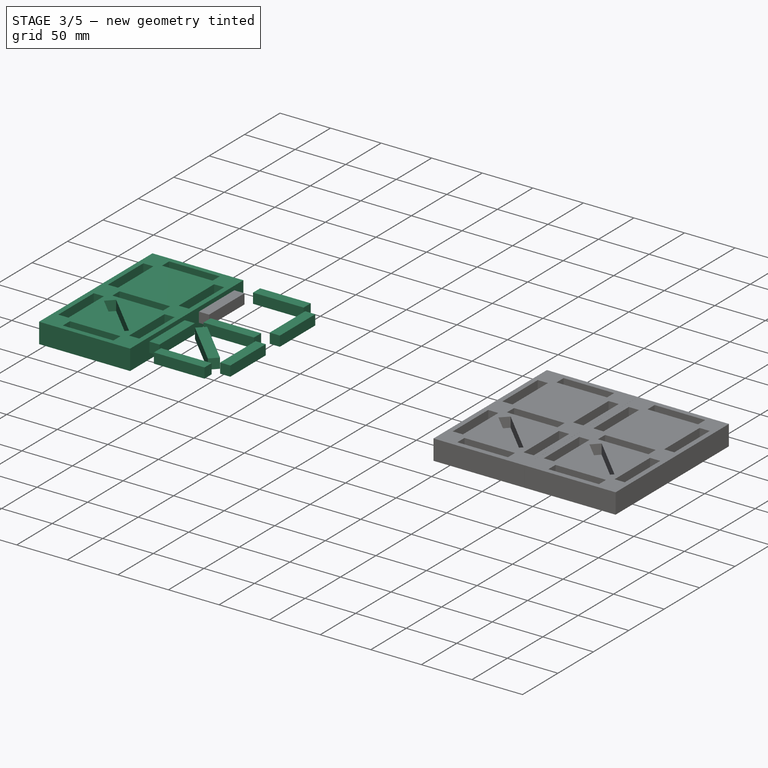
[diagram: stage 3 of 5 — iso view after this stage's code; geometry added in this stage tinted green]
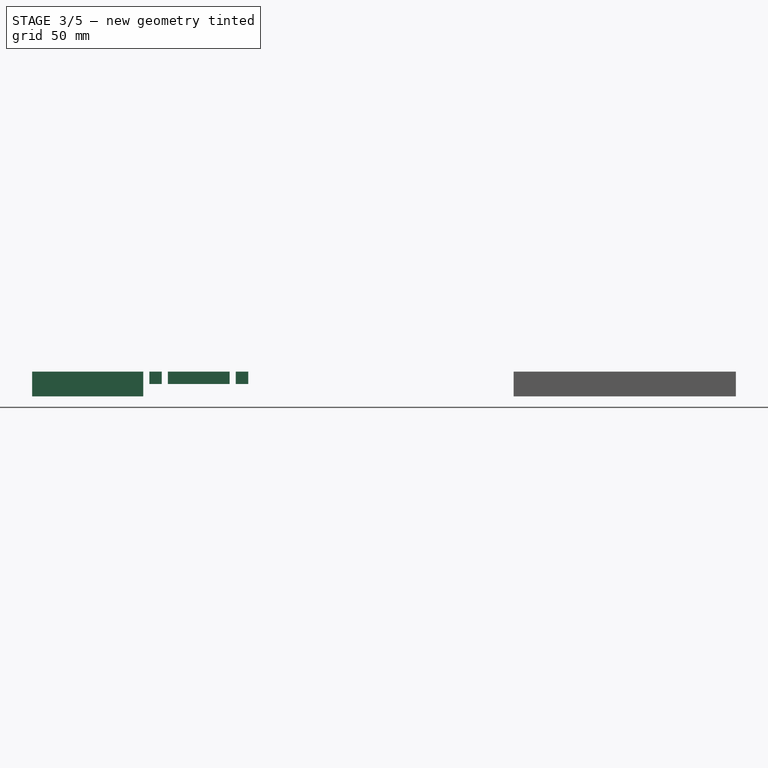
[diagram: stage 3 of 5 — front view after this stage's code; geometry added in this stage tinted green]
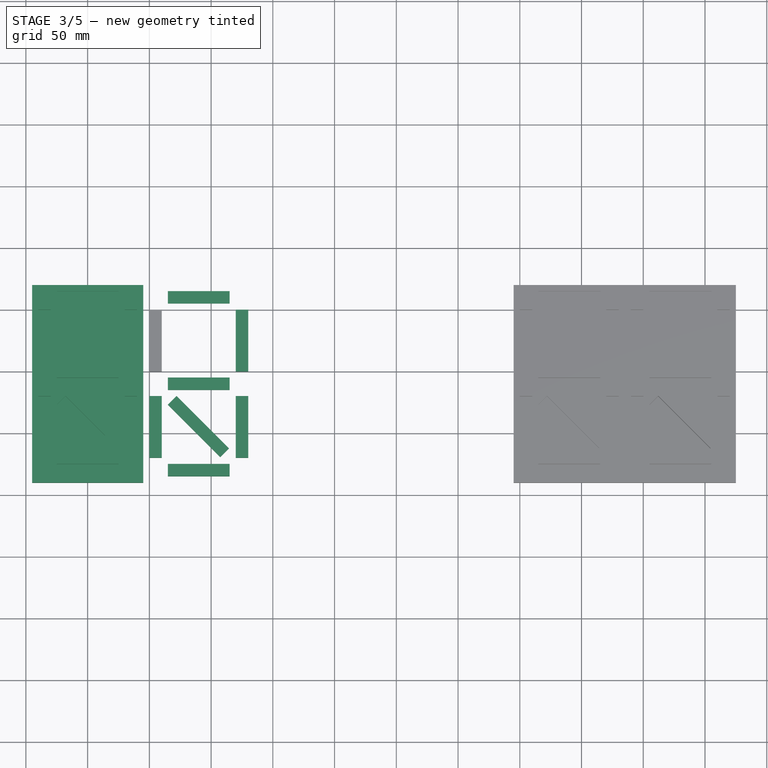
[diagram: stage 3 of 5 — top view after this stage's code; geometry added in this stage tinted green]
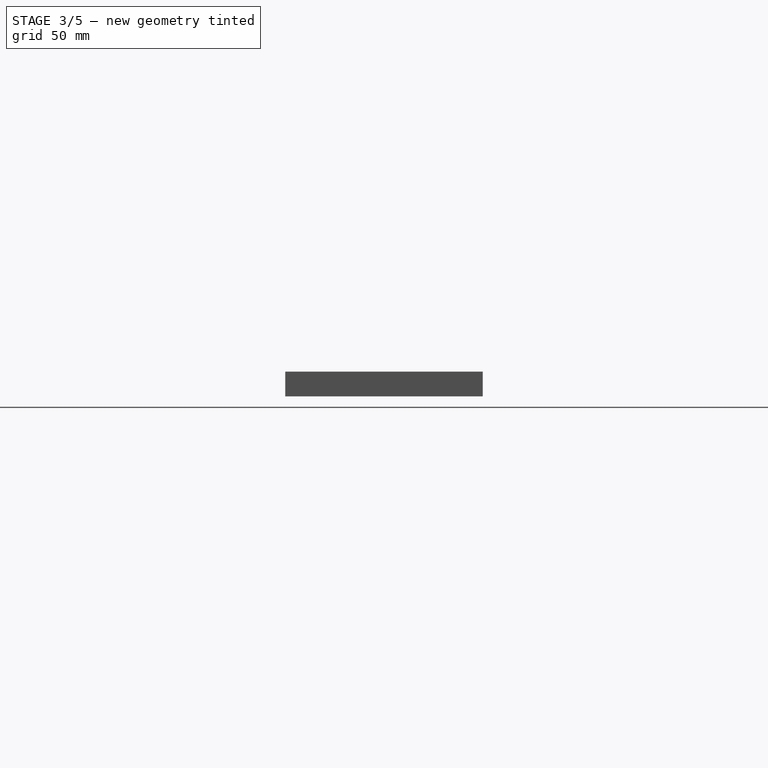
[diagram: stage 3 of 5 — right view after this stage's code; geometry added in this stage tinted green]
FEATURE [Sketcher::SketchObject] Sketch020
  MapMode = 5
  Support = -> [XY_Plane022]
  sketch-geometry (4):
    g0: LineSegment StartX=0 StartY=0 StartZ=0 EndX=10.0441 EndY=0 EndZ=0
    g1: LineSegment StartX=10.0441 StartY=0 StartZ=0 EndX=10.0441 EndY=-50.0124 EndZ=0
    g2: LineSegment StartX=10.0441 StartY=-50.0124 StartZ=0 EndX=0 EndY=-50.0124 EndZ=0
    g3: LineSegment StartX=0 StartY=-50.0124 StartZ=0 EndX=0 EndY=0 EndZ=0
  constraints (9):
    c: Coincident(g0,g1)
    c: Coincident(g1,g2)
    c: Coincident(g2,g3)
    c: Coincident(g3,g0)
    c: Horizontal(g0)
    c: Horizontal(g2)
    c: Vertical(g1)
    c: Vertical(g3)
    c: Coincident(g0,g-1)
FEATURE [PartDesign::Pad] Pad020
  Length = 10
  Length2 = 100
  Profile = -> Sketch020
  Type = 0
FEATURE [PartDesign::Body] Body020  label="SegmentB002"
  Group = -> [Sketch020,Pad020]
  Origin = -> BodyOrigin016
  Tip = -> Pad020
FEATURE [Sketcher::SketchObject] Sketch021
  MapMode = 5
  Support = -> [XY_Plane023]
  sketch-geometry (4):
    g0: LineSegment StartX=0 StartY=0 StartZ=0 EndX=10.0441 EndY=0 EndZ=0
    g1: LineSegment StartX=10.0441 StartY=0 StartZ=0 EndX=10.0441 EndY=-50.0124 EndZ=0
    g2: LineSegment StartX=10.0441 StartY=-50.0124 StartZ=0 EndX=0 EndY=-50.0124 EndZ=0
    g3: LineSegment StartX=0 StartY=-50.0124 StartZ=0 EndX=0 EndY=0 EndZ=0
  constraints (9):
    c: Coincident(g0,g1)
    c: Coincident(g1,g2)
    c: Coincident(g2,g3)
    c: Coincident(g3,g0)
    c: Horizontal(g0)
    c: Horizontal(g2)
    c: Vertical(g1)
    c: Vertical(g3)
    c: Coincident(g0,g-1)
FEATURE [PartDesign::Pad] Pad021
  Length = 10
  Length2 = 100
  Profile = -> Sketch021
  Type = 0
FEATURE [PartDesign::Body] Body021  label="SegmentA002"
  Group = -> [Sketch021,Pad021]
  Origin = -> BodyOrigin017
  Placement = pos=(15,5,0) rot=(0,0,1;1.5708rad)
  Tip = -> Pad021
FEATURE [Sketcher::SketchObject] Sketch022
  MapMode = 5
  Support = -> [XY_Plane024]
  sketch-geometry (4):
    g0: LineSegment StartX=0 StartY=0 StartZ=0 EndX=10.0441 EndY=0 EndZ=0
    g1: LineSegment StartX=10.0441 StartY=0 StartZ=0 EndX=10.0441 EndY=-50.0124 EndZ=0
    g2: LineSegment StartX=10.0441 StartY=-50.0124 StartZ=0 EndX=0 EndY=-50.0124 EndZ=0
    g3: LineSegment StartX=0 StartY=-50.0124 StartZ=0 EndX=0 EndY=0 EndZ=0
  constraints (9):
    c: Coincident(g0,g1)
    c: Coincident(g1,g2)
    c: Coincident(g2,g3)
    c: Coincident(g3,g0)
    c: Horizontal(g0)
    c: Horizontal(g2)
    c: Vertical(g1)
    c: Vertical(g3)
    c: Coincident(g0,g-1)
FEATURE [PartDesign::Pad] Pad022
  Length = 10
  Length2 = 100
  Profile = -> Sketch022
  Type = 0
FEATURE [PartDesign::Body] Body022  label="SegmentC002"
  Group = -> [Sketch022,Pad022]
  Origin = -> BodyOrigin018
  Placement = pos=(70,0,0) rot=(0,0,1;0rad)
  Tip = -> Pad022
FEATURE [Sketcher::SketchObject] Sketch023
  MapMode = 5
  Support = -> [XY_Plane025]
  sketch-geometry (4):
    g0: LineSegment StartX=0 StartY=0 StartZ=0 EndX=10.0441 EndY=0 EndZ=0
    g1: LineSegment StartX=10.0441 StartY=0 StartZ=0 EndX=10.0441 EndY=-50.0124 EndZ=0
    g2: LineSegment StartX=10.0441 StartY=-50.0124 StartZ=0 EndX=0 EndY=-50.0124 EndZ=0
    g3: LineSegment StartX=0 StartY=-50.0124 StartZ=0 EndX=0 EndY=0 EndZ=0
  constraints (9):
    c: Coincident(g0,g1)
    c: Coincident(g1,g2)
    c: Coincident(g2,g3)
    c: Coincident(g3,g0)
    c: Horizontal(g0)
    c: Horizontal(g2)
    c: Vertical(g1)
    c: Vertical(g3)
    c: Coincident(g0,g-1)
FEATURE [PartDesign::Pad] Pad023
  Length = 10
  Length2 = 100
  Profile = -> Sketch023
  Type = 0
FEATURE [PartDesign::Body] Body023  label="SegmentE002"
  Group = -> [Sketch023,Pad023]
  Origin = -> BodyOrigin019
  Placement = pos=(0,-70,0) rot=(0,0,1;0rad)
  Tip = -> Pad023
FEATURE [Sketcher::SketchObject] Sketch024
  MapMode = 5
  Support = -> [XY_Plane026]
  sketch-geometry (4):
    g0: LineSegment StartX=0 StartY=0 StartZ=0 EndX=10.0441 EndY=0 EndZ=0
    g1: LineSegment StartX=10.0441 StartY=0 StartZ=0 EndX=10.0441 EndY=-50.0124 EndZ=0
    g2: LineSegment StartX=10.0441 StartY=-50.0124 StartZ=0 EndX=0 EndY=-50.0124 EndZ=0
    g3: LineSegment StartX=0 StartY=-50.0124 StartZ=0 EndX=0 EndY=0 EndZ=0
  constraints (9):
    c: Coincident(g0,g1)
    c: Coincident(g1,g2)
    c: Coincident(g2,g3)
    c: Coincident(g3,g0)
    c: Horizontal(g0)
    c: Horizontal(g2)
    c: Vertical(g1)
    c: Vertical(g3)
    c: Coincident(g0,g-1)
FEATURE [PartDesign::Pad] Pad024
  Length = 10
  Length2 = 100
  Profile = -> Sketch024
  Type = 0
FEATURE [PartDesign::Body] Body024  label="SegmentF002"
  Group = -> [Sketch024,Pad024]
  Origin = -> BodyOrigin020
  Placement = pos=(70,-70,0) rot=(0,0,1;0rad)
  Tip = -> Pad024
FEATURE [Sketcher::SketchObject] Sketch025
  MapMode = 5
  Support = -> [XY_Plane027]
  sketch-geometry (4):
    g0: LineSegment StartX=0 StartY=0 StartZ=0 EndX=10.0441 EndY=0 EndZ=0
    g1: LineSegment StartX=10.0441 StartY=0 StartZ=0 EndX=10.0441 EndY=-50.0124 EndZ=0
    g2: LineSegment StartX=10.0441 StartY=-50.0124 StartZ=0 EndX=0 EndY=-50.0124 EndZ=0
    g3: LineSegment StartX=0 StartY=-50.0124 StartZ=0 EndX=0 EndY=0 EndZ=0
  constraints (9):
    c: Coincident(g0,g1)
    c: Coincident(g1,g2)
    c: Coincident(g2,g3)
    c: Coincident(g3,g0)
    c: Horizontal(g0)
    c: Horizontal(g2)
    c: Vertical(g1)
    c: Vertical(g3)
    c: Coincident(g0,g-1)
FEATURE [PartDesign::Pad] Pad025
  Length = 10
  Length2 = 100
  Profile = -> Sketch025
  Type = 0
FEATURE [PartDesign::Body] Body025  label="SegmentD002"
  Group = -> [Sketch025,Pad025]
  Origin = -> BodyOrigin021
  Placement = pos=(15,-65,0) rot=(0,0,1;1.5708rad)
  Tip = -> Pad025
FEATURE [Sketcher::SketchObject] Sketch026
  MapMode = 5
  Support = -> [XY_Plane028]
  sketch-geometry (4):
    g0: LineSegment StartX=0 StartY=0 StartZ=0 EndX=10.0441 EndY=0 EndZ=0
    g1: LineSegment StartX=10.0441 StartY=0 StartZ=0 EndX=10.0441 EndY=-50.0124 EndZ=0
    g2: LineSegment StartX=10.0441 StartY=-50.0124 StartZ=0 EndX=0 EndY=-50.0124 EndZ=0
    g3: LineSegment StartX=0 StartY=-50.0124 StartZ=0 EndX=0 EndY=0 EndZ=0
  constraints (9):
    c: Coincident(g0,g1)
    c: Coincident(g1,g2)
    c: Coincident(g2,g3)
    c: Coincident(g3,g0)
    c: Horizontal(g0)
    c: Horizontal(g2)
    c: Vertical(g1)
    c: Vertical(g3)
    c: Coincident(g0,g-1)
FEATURE [PartDesign::Pad] Pad026
  Length = 10
  Length2 = 100
  Profile = -> Sketch026
  Type = 0
FEATURE [PartDesign::Body] Body026  label="SegmentG002"
  Group = -> [Sketch026,Pad026]
  Origin = -> BodyOrigin022
  Placement = pos=(15,-135,0) rot=(0,0,1;1.5708rad)
  Tip = -> Pad026
FEATURE [Sketcher::SketchObject] Sketch027
  MapMode = 5
  Support = -> [XY_Plane029]
  sketch-geometry (4):
    g0: LineSegment StartX=0 StartY=0 StartZ=0 EndX=10.0441 EndY=0 EndZ=0
    g1: LineSegment StartX=10.0441 StartY=0 StartZ=0 EndX=10.0441 EndY=-59.966 EndZ=0
    g2: LineSegment StartX=10.0441 StartY=-59.966 StartZ=0 EndX=0 EndY=-59.966 EndZ=0
    g3: LineSegment StartX=0 StartY=-59.966 StartZ=0 EndX=0 EndY=0 EndZ=0
  constraints (9):
    c: Coincident(g0,g1)
    c: Coincident(g1,g2)
    c: Coincident(g2,g3)
    c: Coincident(g3,g0)
    c: Horizontal(g0)
    c: Horizontal(g2)
    c: Vertical(g1)
    c: Vertical(g3)
    c: Coincident(g0,g-1)
FEATURE [PartDesign::Pad] Pad027
  Length = 10
  Length2 = 100
  Profile = -> Sketch027
  Type = 0
FEATURE [PartDesign::Body] Body028  label="Corps002"
  Group = -> [Sketch028,Pad028]
  Origin = -> Body008Origin002
  Placement = pos=(0,0,-10) rot=(0,0,1;0rad)
  Tip = -> Pad028
FEATURE [Part::MultiFuse] Fusion003
  Shapes = -> [Body020,Body021,Body022,Body023,Body024,Body025,Body026,Body027]
FEATURE [Sketcher::SketchObject] Sketch029
  MapMode = 5
  Support = -> [XY_Plane031]
  sketch-geometry (4):
    g0: LineSegment StartX=0 StartY=0 StartZ=0 EndX=10.0441 EndY=0 EndZ=0
    g1: LineSegment StartX=10.0441 StartY=0 StartZ=0 EndX=10.0441 EndY=-50.0124 EndZ=0
    g2: LineSegment StartX=10.0441 StartY=-50.0124 StartZ=0 EndX=0 EndY=-50.0124 EndZ=0
    g3: LineSegment StartX=0 StartY=-50.0124 StartZ=0 EndX=0 EndY=0 EndZ=0
  constraints (9):
    c: Coincident(g0,g1)
    c: Coincident(g1,g2)
    c: Coincident(g2,g3)
    c: Coincident(g3,g0)
    c: Horizontal(g0)
    c: Horizontal(g2)
    c: Vertical(g1)
    c: Vertical(g3)
    c: Coincident(g0,g-1)
FEATURE [PartDesign::Pad] Pad029
  Length = 10
  Length2 = 100
  Profile = -> Sketch029
  Type = 0
FEATURE [PartDesign::Body] Body029  label="SegmentB003"
  Group = -> [Sketch029,Pad029]
  Origin = -> BodyOrigin024
  Tip = -> Pad029
FEATURE [Sketcher::SketchObject] Sketch030
  MapMode = 5
  Support = -> [XY_Plane032]
  sketch-geometry (4):
    g0: LineSegment StartX=0 StartY=0 StartZ=0 EndX=10.0441 EndY=0 EndZ=0
    g1: LineSegment StartX=10.0441 StartY=0 StartZ=0 EndX=10.0441 EndY=-50.0124 EndZ=0
    g2: LineSegment StartX=10.0441 StartY=-50.0124 StartZ=0 EndX=0 EndY=-50.0124 EndZ=0
    g3: LineSegment StartX=0 StartY=-50.0124 StartZ=0 EndX=0 EndY=0 EndZ=0
  constraints (9):
    c: Coincident(g0,g1)
    c: Coincident(g1,g2)
    c: Coincident(g2,g3)
    c: Coincident(g3,g0)
    c: Horizontal(g0)
    c: Horizontal(g2)
    c: Vertical(g1)
    c: Vertical(g3)
    c: Coincident(g0,g-1)
FEATURE [PartDesign::Pad] Pad030
  Length = 10
  Length2 = 100
  Profile = -> Sketch030
  Type = 0
FEATURE [PartDesign::Body] Body036  label="SegmentH003"
  Group = -> [Sketch036,Pad036]
  Origin = -> BodyOrigin031
  Placement = pos=(15,-77,0) rot=(0,0,1;0.785398rad)
  Tip = -> Pad036
FEATURE [Sketcher::SketchObject] Sketch037
  MapMode = 5
  Support = -> [XY_Plane039]
  sketch-geometry (4):
    g0: LineSegment StartX=-4.9584 StartY=19.963 StartZ=0 EndX=85.0181 EndY=19.963 EndZ=0
    g1: LineSegment StartX=85.0181 StartY=19.963 StartZ=0 EndX=85.0181 EndY=-140.079 EndZ=0
    g2: LineSegment StartX=85.0181 StartY=-140.079 StartZ=0 EndX=-4.9584 EndY=-140.079 EndZ=0
    g3: LineSegment StartX=-4.9584 StartY=-140.079 StartZ=0 EndX=-4.9584 EndY=19.963 EndZ=0
  constraints (8):
    c: Coincident(g0,g1)
    c: Coincident(g1,g2)
    c: Coincident(g2,g3)
    c: Coincident(g3,g0)
    c: Horizontal(g0)
    c: Horizontal(g2)
    c: Vertical(g1)
    c: Vertical(g3)
FEATURE [PartDesign::Pad] Pad037
  Length = 20
  Length2 = 100
  Profile = -> Sketch037
  Type = 0
FEATURE [PartDesign::Body] Body037  label="Corps003"
  Group = -> [Sketch037,Pad037]
  Origin = -> Body008Origin003
  Placement = pos=(0,0,-10) rot=(0,0,1;0rad)
  Tip = -> Pad037
FEATURE [Part::MultiFuse] Fusion004
  Shapes = -> [Body029,Body030,Body031,Body032,Body033,Body034,Body035,Body036]
FEATURE [Part::Cut] Cut003  label="Digit10h001"
  Base = -> Body037
  Placement = pos=(-90,0,0) rot=(0,0,1;0rad)
  Tool = -> Fusion004
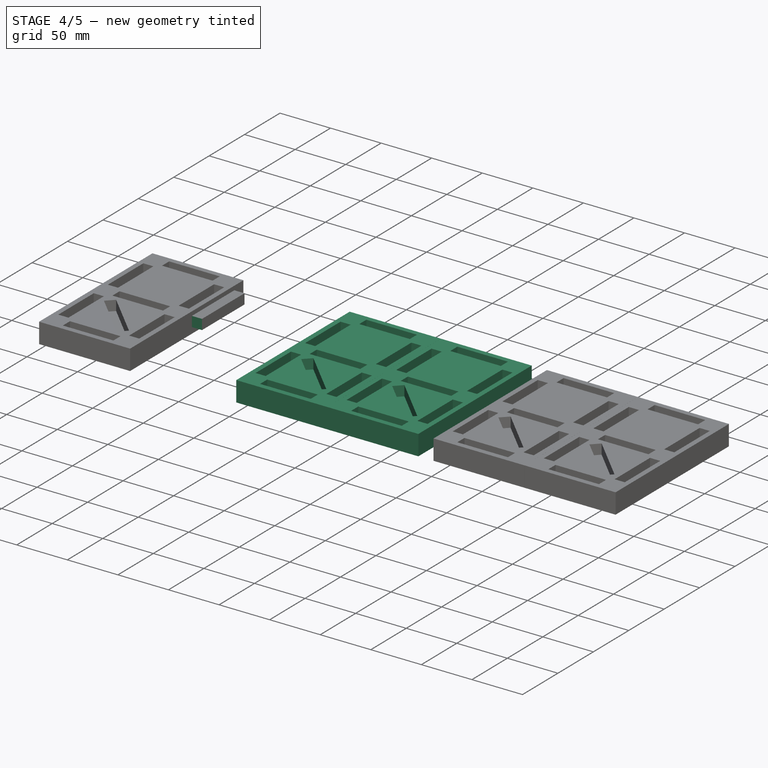
[diagram: stage 4 of 5 — iso view after this stage's code; geometry added in this stage tinted green]
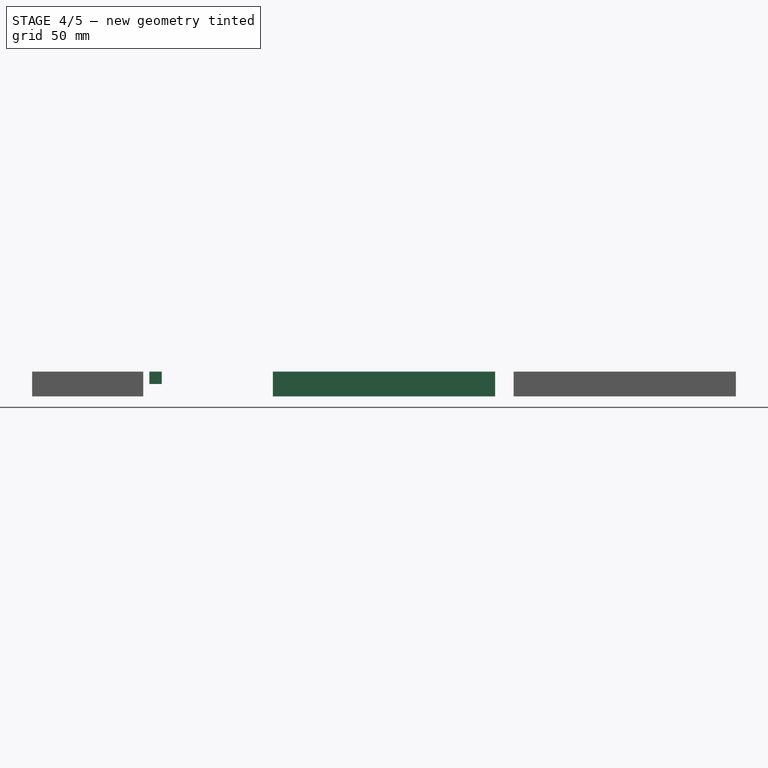
[diagram: stage 4 of 5 — front view after this stage's code; geometry added in this stage tinted green]
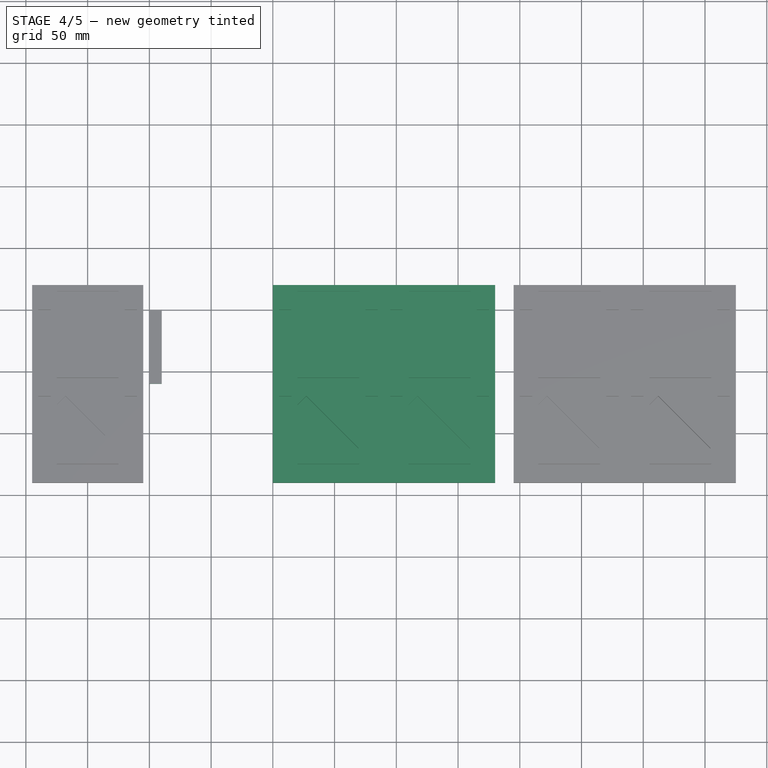
[diagram: stage 4 of 5 — top view after this stage's code; geometry added in this stage tinted green]
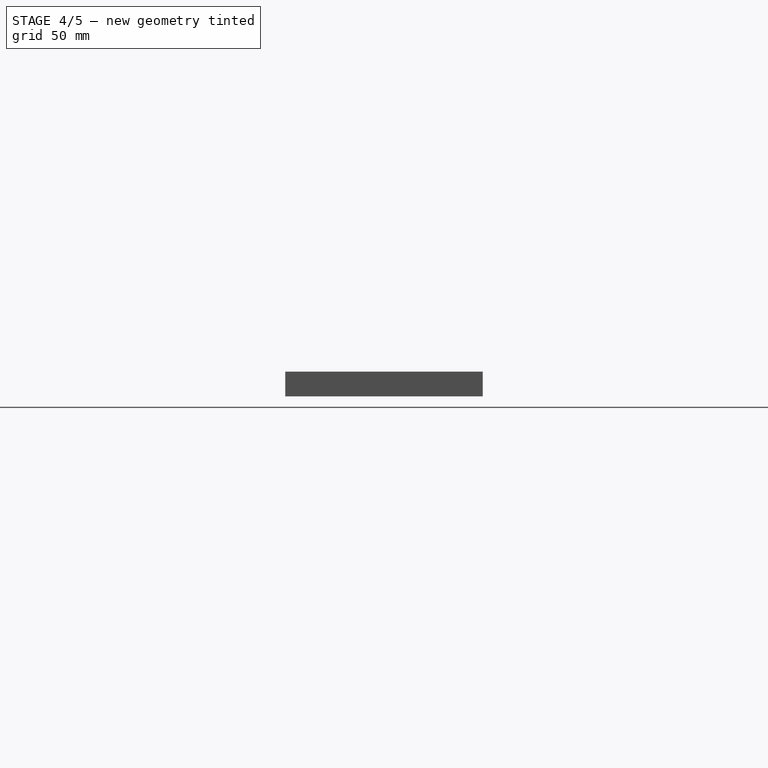
[diagram: stage 4 of 5 — right view after this stage's code; geometry added in this stage tinted green]
FEATURE [PartDesign::Body] Body006  label="SegmentG"
  Group = -> [Sketch006,Pad006]
  Origin = -> BodyOrigin006
  Placement = pos=(15,-135,0) rot=(0,0,1;1.5708rad)
  Tip = -> Pad006
FEATURE [Sketcher::SketchObject] Sketch007
  MapMode = 5
  Support = -> [XY_Plane008]
  sketch-geometry (4):
    g0: LineSegment StartX=0 StartY=0 StartZ=0 EndX=10.0441 EndY=0 EndZ=0
    g1: LineSegment StartX=10.0441 StartY=0 StartZ=0 EndX=10.0441 EndY=-59.966 EndZ=0
    g2: LineSegment StartX=10.0441 StartY=-59.966 StartZ=0 EndX=0 EndY=-59.966 EndZ=0
    g3: LineSegment StartX=0 StartY=-59.966 StartZ=0 EndX=0 EndY=0 EndZ=0
  constraints (9):
    c: Coincident(g0,g1)
    c: Coincident(g1,g2)
    c: Coincident(g2,g3)
    c: Coincident(g3,g0)
    c: Horizontal(g0)
    c: Horizontal(g2)
    c: Vertical(g1)
    c: Vertical(g3)
    c: Coincident(g0,g-1)
FEATURE [PartDesign::Pad] Pad007
  Length = 10
  Length2 = 100
  Profile = -> Sketch007
  Type = 0
FEATURE [PartDesign::Body] Body009  label="PointHeures"
  Group = -> [Sketch009,Pad009]
  Origin = -> Body009Origin
  Placement = pos=(-5.2,0.5,-10) rot=(0,0,1;0rad)
  Tip = -> Pad009
FEATURE [Sketcher::SketchObject] Sketch010
  MapMode = 5
  Support = -> [XY_Plane012]
  sketch-geometry (4):
    g0: LineSegment StartX=0 StartY=0 StartZ=0 EndX=10.0441 EndY=0 EndZ=0
    g1: LineSegment StartX=10.0441 StartY=0 StartZ=0 EndX=10.0441 EndY=-50.0124 EndZ=0
    g2: LineSegment StartX=10.0441 StartY=-50.0124 StartZ=0 EndX=0 EndY=-50.0124 EndZ=0
    g3: LineSegment StartX=0 StartY=-50.0124 StartZ=0 EndX=0 EndY=0 EndZ=0
  constraints (9):
    c: Coincident(g0,g1)
    c: Coincident(g1,g2)
    c: Coincident(g2,g3)
    c: Coincident(g3,g0)
    c: Horizontal(g0)
    c: Horizontal(g2)
    c: Vertical(g1)
    c: Vertical(g3)
    c: Coincident(g0,g-1)
FEATURE [PartDesign::Pad] Pad010
  Length = 10
  Length2 = 100
  Profile = -> Sketch010
  Type = 0
FEATURE [PartDesign::Body] Body010  label="SegmentB001"
  Group = -> [Sketch010,Pad010]
  Origin = -> BodyOrigin008
  Tip = -> Pad010
FEATURE [Sketcher::SketchObject] Sketch011
  MapMode = 5
  Support = -> [XY_Plane013]
  sketch-geometry (4):
    g0: LineSegment StartX=0 StartY=0 StartZ=0 EndX=10.0441 EndY=0 EndZ=0
    g1: LineSegment StartX=10.0441 StartY=0 StartZ=0 EndX=10.0441 EndY=-50.0124 EndZ=0
    g2: LineSegment StartX=10.0441 StartY=-50.0124 StartZ=0 EndX=0 EndY=-50.0124 EndZ=0
    g3: LineSegment StartX=0 StartY=-50.0124 StartZ=0 EndX=0 EndY=0 EndZ=0
  constraints (9):
    c: Coincident(g0,g1)
    c: Coincident(g1,g2)
    c: Coincident(g2,g3)
    c: Coincident(g3,g0)
    c: Horizontal(g0)
    c: Horizontal(g2)
    c: Vertical(g1)
    c: Vertical(g3)
    c: Coincident(g0,g-1)
FEATURE [PartDesign::Pad] Pad011
  Length = 10
  Length2 = 100
  Profile = -> Sketch011
  Type = 0
FEATURE [PartDesign::Body] Body011  label="SegmentA001"
  Group = -> [Sketch011,Pad011]
  Origin = -> BodyOrigin009
  Placement = pos=(15,5,0) rot=(0,0,1;1.5708rad)
  Tip = -> Pad011
FEATURE [Sketcher::SketchObject] Sketch012
  MapMode = 5
  Support = -> [XY_Plane014]
  sketch-geometry (4):
    g0: LineSegment StartX=0 StartY=0 StartZ=0 EndX=10.0441 EndY=0 EndZ=0
    g1: LineSegment StartX=10.0441 StartY=0 StartZ=0 EndX=10.0441 EndY=-50.0124 EndZ=0
    g2: LineSegment StartX=10.0441 StartY=-50.0124 StartZ=0 EndX=0 EndY=-50.0124 EndZ=0
    g3: LineSegment StartX=0 StartY=-50.0124 StartZ=0 EndX=0 EndY=0 EndZ=0
  constraints (9):
    c: Coincident(g0,g1)
    c: Coincident(g1,g2)
    c: Coincident(g2,g3)
    c: Coincident(g3,g0)
    c: Horizontal(g0)
    c: Horizontal(g2)
    c: Vertical(g1)
    c: Vertical(g3)
    c: Coincident(g0,g-1)
FEATURE [PartDesign::Pad] Pad012
  Length = 10
  Length2 = 100
  Profile = -> Sketch012
  Type = 0
FEATURE [PartDesign::Body] Body012  label="SegmentC001"
  Group = -> [Sketch012,Pad012]
  Origin = -> BodyOrigin010
  Placement = pos=(70,0,0) rot=(0,0,1;0rad)
  Tip = -> Pad012
FEATURE [Sketcher::SketchObject] Sketch013
  MapMode = 5
  Support = -> [XY_Plane015]
  sketch-geometry (4):
    g0: LineSegment StartX=0 StartY=0 StartZ=0 EndX=10.0441 EndY=0 EndZ=0
    g1: LineSegment StartX=10.0441 StartY=0 StartZ=0 EndX=10.0441 EndY=-50.0124 EndZ=0
    g2: LineSegment StartX=10.0441 StartY=-50.0124 StartZ=0 EndX=0 EndY=-50.0124 EndZ=0
    g3: LineSegment StartX=0 StartY=-50.0124 StartZ=0 EndX=0 EndY=0 EndZ=0
  constraints (9):
    c: Coincident(g0,g1)
    c: Coincident(g1,g2)
    c: Coincident(g2,g3)
    c: Coincident(g3,g0)
    c: Horizontal(g0)
    c: Horizontal(g2)
    c: Vertical(g1)
    c: Vertical(g3)
    c: Coincident(g0,g-1)
FEATURE [PartDesign::Pad] Pad013
  Length = 10
  Length2 = 100
  Profile = -> Sketch013
  Type = 0
FEATURE [PartDesign::Body] Body013  label="SegmentE001"
  Group = -> [Sketch013,Pad013]
  Origin = -> BodyOrigin011
  Placement = pos=(0,-70,0) rot=(0,0,1;0rad)
  Tip = -> Pad013
FEATURE [Sketcher::SketchObject] Sketch014
  MapMode = 5
  Support = -> [XY_Plane016]
  sketch-geometry (4):
    g0: LineSegment StartX=0 StartY=0 StartZ=0 EndX=10.0441 EndY=0 EndZ=0
    g1: LineSegment StartX=10.0441 StartY=0 StartZ=0 EndX=10.0441 EndY=-50.0124 EndZ=0
    g2: LineSegment StartX=10.0441 StartY=-50.0124 StartZ=0 EndX=0 EndY=-50.0124 EndZ=0
    g3: LineSegment StartX=0 StartY=-50.0124 StartZ=0 EndX=0 EndY=0 EndZ=0
  constraints (9):
    c: Coincident(g0,g1)
    c: Coincident(g1,g2)
    c: Coincident(g2,g3)
    c: Coincident(g3,g0)
    c: Horizontal(g0)
    c: Horizontal(g2)
    c: Vertical(g1)
    c: Vertical(g3)
    c: Coincident(g0,g-1)
FEATURE [PartDesign::Pad] Pad014
  Length = 10
  Length2 = 100
  Profile = -> Sketch014
  Type = 0
FEATURE [PartDesign::Body] Body014  label="SegmentF001"
  Group = -> [Sketch014,Pad014]
  Origin = -> BodyOrigin012
  Placement = pos=(70,-70,0) rot=(0,0,1;0rad)
  Tip = -> Pad014
FEATURE [Sketcher::SketchObject] Sketch015
  MapMode = 5
  Support = -> [XY_Plane017]
  sketch-geometry (4):
    g0: LineSegment StartX=0 StartY=0 StartZ=0 EndX=10.0441 EndY=0 EndZ=0
    g1: LineSegment StartX=10.0441 StartY=0 StartZ=0 EndX=10.0441 EndY=-50.0124 EndZ=0
    g2: LineSegment StartX=10.0441 StartY=-50.0124 StartZ=0 EndX=0 EndY=-50.0124 EndZ=0
    g3: LineSegment StartX=0 StartY=-50.0124 StartZ=0 EndX=0 EndY=0 EndZ=0
  constraints (9):
    c: Coincident(g0,g1)
    c: Coincident(g1,g2)
    c: Coincident(g2,g3)
    c: Coincident(g3,g0)
    c: Horizontal(g0)
    c: Horizontal(g2)
    c: Vertical(g1)
    c: Vertical(g3)
    c: Coincident(g0,g-1)
FEATURE [PartDesign::Pad] Pad015
  Length = 10
  Length2 = 100
  Profile = -> Sketch015
  Type = 0
FEATURE [PartDesign::Body] Body015  label="SegmentD001"
  Group = -> [Sketch015,Pad015]
  Origin = -> BodyOrigin013
  Placement = pos=(15,-65,0) rot=(0,0,1;1.5708rad)
  Tip = -> Pad015
FEATURE [Sketcher::SketchObject] Sketch016
  MapMode = 5
  Support = -> [XY_Plane018]
  sketch-geometry (4):
    g0: LineSegment StartX=0 StartY=0 StartZ=0 EndX=10.0441 EndY=0 EndZ=0
    g1: LineSegment StartX=10.0441 StartY=0 StartZ=0 EndX=10.0441 EndY=-50.0124 EndZ=0
    g2: LineSegment StartX=10.0441 StartY=-50.0124 StartZ=0 EndX=0 EndY=-50.0124 EndZ=0
    g3: LineSegment StartX=0 StartY=-50.0124 StartZ=0 EndX=0 EndY=0 EndZ=0
  constraints (9):
    c: Coincident(g0,g1)
    c: Coincident(g1,g2)
    c: Coincident(g2,g3)
    c: Coincident(g3,g0)
    c: Horizontal(g0)
    c: Horizontal(g2)
    c: Vertical(g1)
    c: Vertical(g3)
    c: Coincident(g0,g-1)
FEATURE [PartDesign::Pad] Pad016
  Length = 10
  Length2 = 100
  Profile = -> Sketch016
  Type = 0
FEATURE [PartDesign::Body] Body016  label="SegmentG001"
  Group = -> [Sketch016,Pad016]
  Origin = -> BodyOrigin014
  Placement = pos=(15,-135,0) rot=(0,0,1;1.5708rad)
  Tip = -> Pad016
FEATURE [Sketcher::SketchObject] Sketch017
  MapMode = 5
  Support = -> [XY_Plane019]
  sketch-geometry (4):
    g0: LineSegment StartX=0 StartY=0 StartZ=0 EndX=10.0441 EndY=0 EndZ=0
    g1: LineSegment StartX=10.0441 StartY=0 StartZ=0 EndX=10.0441 EndY=-59.966 EndZ=0
    g2: LineSegment StartX=10.0441 StartY=-59.966 StartZ=0 EndX=0 EndY=-59.966 EndZ=0
    g3: LineSegment StartX=0 StartY=-59.966 StartZ=0 EndX=0 EndY=0 EndZ=0
  constraints (9):
    c: Coincident(g0,g1)
    c: Coincident(g1,g2)
    c: Coincident(g2,g3)
    c: Coincident(g3,g0)
    c: Horizontal(g0)
    c: Horizontal(g2)
    c: Vertical(g1)
    c: Vertical(g3)
    c: Coincident(g0,g-1)
FEATURE [PartDesign::Pad] Pad017
  Length = 10
  Length2 = 100
  Profile = -> Sketch017
  Type = 0
FEATURE [PartDesign::Body] Body017  label="SegmentH001"
  Group = -> [Sketch017,Pad017]
  Origin = -> BodyOrigin015
  Placement = pos=(15,-77,0) rot=(0,0,1;0.785398rad)
  Tip = -> Pad017
FEATURE [Sketcher::SketchObject] Sketch018
  MapMode = 5
  Support = -> [XY_Plane020]
  sketch-geometry (4):
    g0: LineSegment StartX=-4.9584 StartY=19.963 StartZ=0 EndX=85.0181 EndY=19.963 EndZ=0
    g1: LineSegment StartX=85.0181 StartY=19.963 StartZ=0 EndX=85.0181 EndY=-140.079 EndZ=0
    g2: LineSegment StartX=85.0181 StartY=-140.079 StartZ=0 EndX=-4.9584 EndY=-140.079 EndZ=0
    g3: LineSegment StartX=-4.9584 StartY=-140.079 StartZ=0 EndX=-4.9584 EndY=19.963 EndZ=0
  constraints (8):
    c: Coincident(g0,g1)
    c: Coincident(g1,g2)
    c: Coincident(g2,g3)
    c: Coincident(g3,g0)
    c: Horizontal(g0)
    c: Horizontal(g2)
    c: Vertical(g1)
    c: Vertical(g3)
FEATURE [PartDesign::Pad] Pad018
  Length = 20
  Length2 = 100
  Profile = -> Sketch018
  Type = 0
FEATURE [PartDesign::Body] Body018  label="Corps001"
  Group = -> [Sketch018,Pad018]
  Origin = -> Body008Origin001
  Placement = pos=(0,0,-10) rot=(0,0,1;0rad)
  Tip = -> Pad018
FEATURE [Part::MultiFuse] Fusion001
  Shapes = -> [Body010,Body011,Body012,Body013,Body014,Body015,Body016,Body017]
FEATURE [Part::Cut] Cut001  label="Digit10h"
  Base = -> Body018
  Placement = pos=(-90,0,0) rot=(0,0,1;0rad)
  Tool = -> Fusion001
FEATURE [PartDesign::Body] Body027  label="SegmentH002"
  Group = -> [Sketch027,Pad027]
  Origin = -> BodyOrigin023
  Placement = pos=(15,-77,0) rot=(0,0,1;0.785398rad)
  Tip = -> Pad027
FEATURE [Sketcher::SketchObject] Sketch028
  MapMode = 5
  Support = -> [XY_Plane030]
  sketch-geometry (4):
    g0: LineSegment StartX=-4.9584 StartY=19.963 StartZ=0 EndX=85.0181 EndY=19.963 EndZ=0
    g1: LineSegment StartX=85.0181 StartY=19.963 StartZ=0 EndX=85.0181 EndY=-140.079 EndZ=0
    g2: LineSegment StartX=85.0181 StartY=-140.079 StartZ=0 EndX=-4.9584 EndY=-140.079 EndZ=0
    g3: LineSegment StartX=-4.9584 StartY=-140.079 StartZ=0 EndX=-4.9584 EndY=19.963 EndZ=0
  constraints (8):
    c: Coincident(g0,g1)
    c: Coincident(g1,g2)
    c: Coincident(g2,g3)
    c: Coincident(g3,g0)
    c: Horizontal(g0)
    c: Horizontal(g2)
    c: Vertical(g1)
    c: Vertical(g3)
FEATURE [PartDesign::Pad] Pad028
  Length = 20
  Length2 = 100
  Profile = -> Sketch028
  Type = 0
FEATURE [Part::Cut] Cut002  label="Digit1h001"
  Base = -> Body028
  Tool = -> Fusion003
FEATURE [Part::MultiFuse] Fusion005  label="Minutes"
  Placement = pos=(195,0,0) rot=(0,0,1;0rad)
  Shapes = -> [Cut003,Cut002]
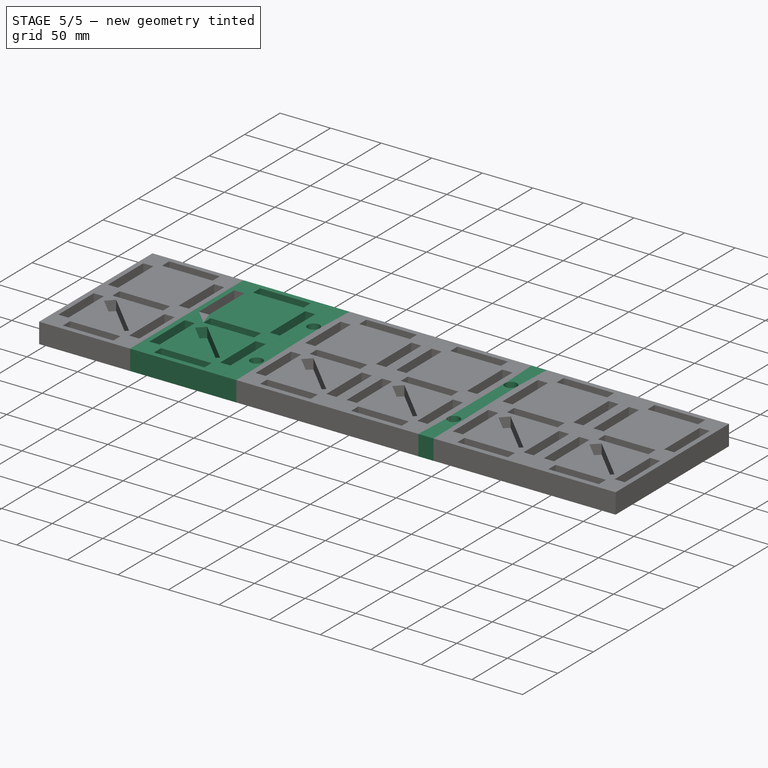
[diagram: stage 5 of 5 — iso view after this stage's code; geometry added in this stage tinted green]
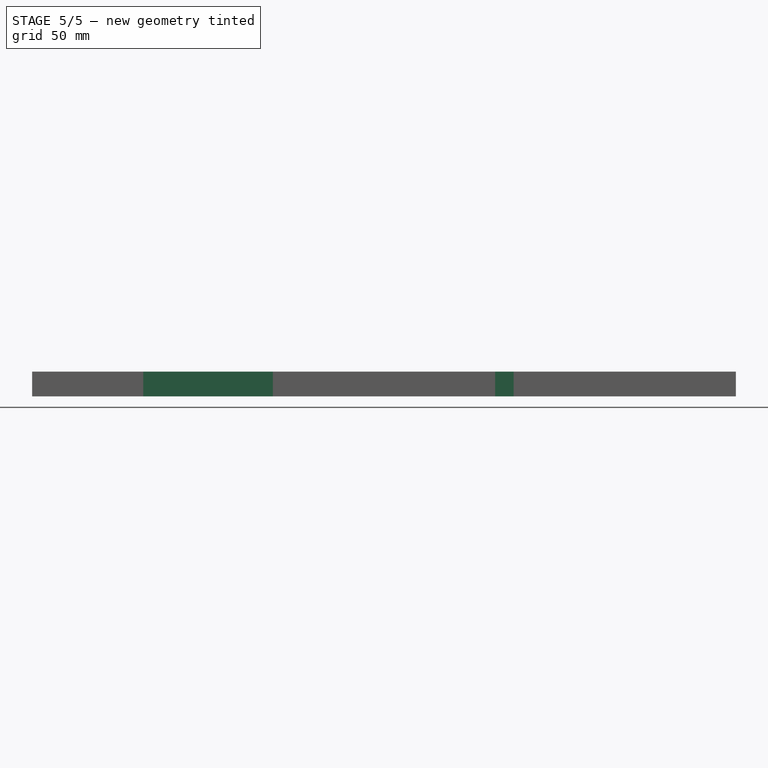
[diagram: stage 5 of 5 — front view after this stage's code; geometry added in this stage tinted green]
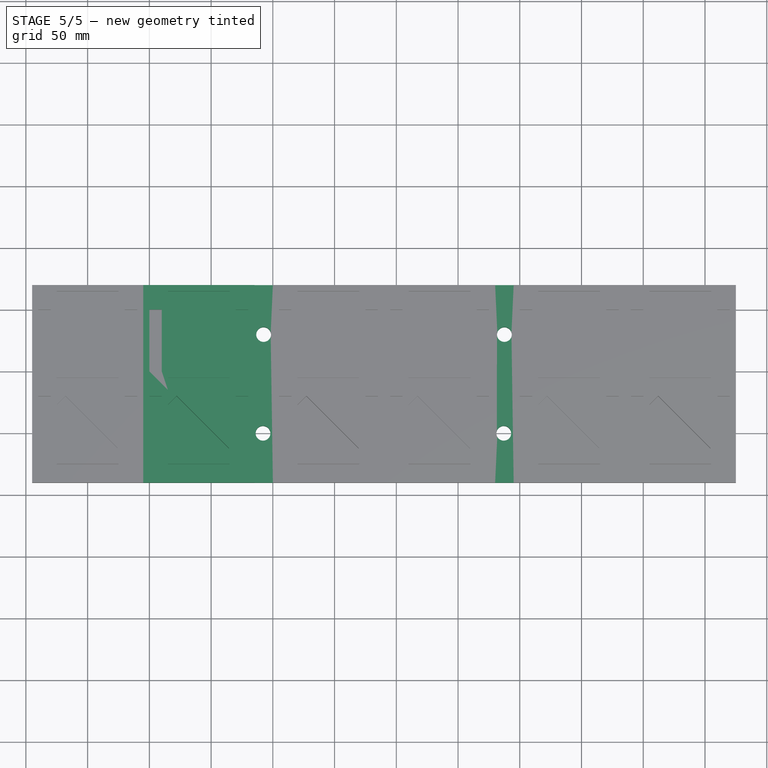
[diagram: stage 5 of 5 — top view after this stage's code; geometry added in this stage tinted green]
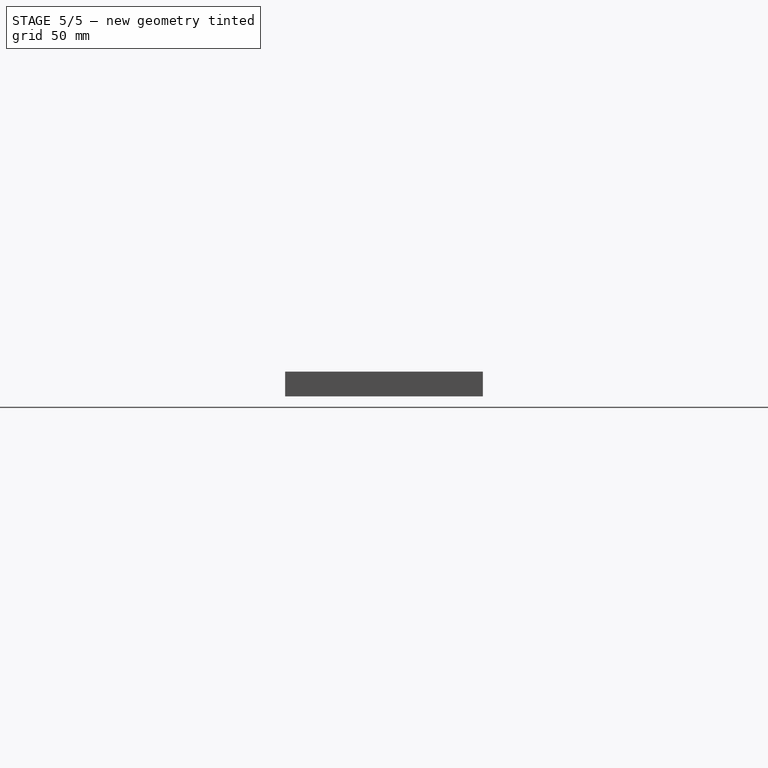
[diagram: stage 5 of 5 — right view after this stage's code; geometry added in this stage tinted green]
FEATURE [App::Part] Part001  label="_Digit"
  License = CC BY 3.0
  LicenseURL = http://creativecommons.org/licenses/by/3.0/
  Origin = -> Part001Origin
FEATURE [Sketcher::SketchObject] Sketch
  MapMode = 5
  Support = -> [XY_Plane]
  sketch-geometry (4):
    g0: LineSegment StartX=0 StartY=0 StartZ=0 EndX=10.0441 EndY=0 EndZ=0
    g1: LineSegment StartX=10.0441 StartY=0 StartZ=0 EndX=10.0441 EndY=-50.0124 EndZ=0
    g2: LineSegment StartX=10.0441 StartY=-50.0124 StartZ=0 EndX=0 EndY=-50.0124 EndZ=0
    g3: LineSegment StartX=0 StartY=-50.0124 StartZ=0 EndX=0 EndY=0 EndZ=0
  constraints (9):
    c: Coincident(g0,g1)
    c: Coincident(g1,g2)
    c: Coincident(g2,g3)
    c: Coincident(g3,g0)
    c: Horizontal(g0)
    c: Horizontal(g2)
    c: Vertical(g1)
    c: Vertical(g3)
    c: Coincident(g0,g-1)
FEATURE [PartDesign::Pad] Pad
  Length = 10
  Length2 = 100
  Profile = -> Sketch
  Type = 0
FEATURE [PartDesign::Body] Body  label="SegmentB"
  Group = -> [Sketch,Pad]
  Origin = -> BodyOrigin
  Tip = -> Pad
FEATURE [Sketcher::SketchObject] Sketch001
  MapMode = 5
  Support = -> [XY_Plane002]
  sketch-geometry (4):
    g0: LineSegment StartX=0 StartY=0 StartZ=0 EndX=10.0441 EndY=0 EndZ=0
    g1: LineSegment StartX=10.0441 StartY=0 StartZ=0 EndX=10.0441 EndY=-50.0124 EndZ=0
    g2: LineSegment StartX=10.0441 StartY=-50.0124 StartZ=0 EndX=0 EndY=-50.0124 EndZ=0
    g3: LineSegment StartX=0 StartY=-50.0124 StartZ=0 EndX=0 EndY=0 EndZ=0
  constraints (9):
    c: Coincident(g0,g1)
    c: Coincident(g1,g2)
    c: Coincident(g2,g3)
    c: Coincident(g3,g0)
    c: Horizontal(g0)
    c: Horizontal(g2)
    c: Vertical(g1)
    c: Vertical(g3)
    c: Coincident(g0,g-1)
FEATURE [PartDesign::Pad] Pad001
  Length = 10
  Length2 = 100
  Profile = -> Sketch001
  Type = 0
FEATURE [PartDesign::Body] Body001  label="SegmentA"
  Group = -> [Sketch001,Pad001]
  Origin = -> BodyOrigin001
  Placement = pos=(15,5,0) rot=(0,0,1;1.5708rad)
  Tip = -> Pad001
FEATURE [Sketcher::SketchObject] Sketch002
  MapMode = 5
  Support = -> [XY_Plane003]
  sketch-geometry (4):
    g0: LineSegment StartX=0 StartY=0 StartZ=0 EndX=10.0441 EndY=0 EndZ=0
    g1: LineSegment StartX=10.0441 StartY=0 StartZ=0 EndX=10.0441 EndY=-50.0124 EndZ=0
    g2: LineSegment StartX=10.0441 StartY=-50.0124 StartZ=0 EndX=0 EndY=-50.0124 EndZ=0
    g3: LineSegment StartX=0 StartY=-50.0124 StartZ=0 EndX=0 EndY=0 EndZ=0
  constraints (9):
    c: Coincident(g0,g1)
    c: Coincident(g1,g2)
    c: Coincident(g2,g3)
    c: Coincident(g3,g0)
    c: Horizontal(g0)
    c: Horizontal(g2)
    c: Vertical(g1)
    c: Vertical(g3)
    c: Coincident(g0,g-1)
FEATURE [PartDesign::Pad] Pad002
  Length = 10
  Length2 = 100
  Profile = -> Sketch002
  Type = 0
FEATURE [PartDesign::Body] Body002  label="SegmentC"
  Group = -> [Sketch002,Pad002]
  Origin = -> BodyOrigin002
  Placement = pos=(70,0,0) rot=(0,0,1;0rad)
  Tip = -> Pad002
FEATURE [Sketcher::SketchObject] Sketch003
  MapMode = 5
  Support = -> [XY_Plane004]
  sketch-geometry (4):
    g0: LineSegment StartX=0 StartY=0 StartZ=0 EndX=10.0441 EndY=0 EndZ=0
    g1: LineSegment StartX=10.0441 StartY=0 StartZ=0 EndX=10.0441 EndY=-50.0124 EndZ=0
    g2: LineSegment StartX=10.0441 StartY=-50.0124 StartZ=0 EndX=0 EndY=-50.0124 EndZ=0
    g3: LineSegment StartX=0 StartY=-50.0124 StartZ=0 EndX=0 EndY=0 EndZ=0
  constraints (9):
    c: Coincident(g0,g1)
    c: Coincident(g1,g2)
    c: Coincident(g2,g3)
    c: Coincident(g3,g0)
    c: Horizontal(g0)
    c: Horizontal(g2)
    c: Vertical(g1)
    c: Vertical(g3)
    c: Coincident(g0,g-1)
FEATURE [PartDesign::Pad] Pad003
  Length = 10
  Length2 = 100
  Profile = -> Sketch003
  Type = 0
FEATURE [PartDesign::Body] Body003  label="SegmentE"
  Group = -> [Sketch003,Pad003]
  Origin = -> BodyOrigin003
  Placement = pos=(0,-70,0) rot=(0,0,1;0rad)
  Tip = -> Pad003
FEATURE [Sketcher::SketchObject] Sketch004
  MapMode = 5
  Support = -> [XY_Plane005]
  sketch-geometry (4):
    g0: LineSegment StartX=0 StartY=0 StartZ=0 EndX=10.0441 EndY=0 EndZ=0
    g1: LineSegment StartX=10.0441 StartY=0 StartZ=0 EndX=10.0441 EndY=-50.0124 EndZ=0
    g2: LineSegment StartX=10.0441 StartY=-50.0124 StartZ=0 EndX=0 EndY=-50.0124 EndZ=0
    g3: LineSegment StartX=0 StartY=-50.0124 StartZ=0 EndX=0 EndY=0 EndZ=0
  constraints (9):
    c: Coincident(g0,g1)
    c: Coincident(g1,g2)
    c: Coincident(g2,g3)
    c: Coincident(g3,g0)
    c: Horizontal(g0)
    c: Horizontal(g2)
    c: Vertical(g1)
    c: Vertical(g3)
    c: Coincident(g0,g-1)
FEATURE [PartDesign::Pad] Pad004
  Length = 10
  Length2 = 100
  Profile = -> Sketch004
  Type = 0
FEATURE [PartDesign::Body] Body004  label="SegmentF"
  Group = -> [Sketch004,Pad004]
  Origin = -> BodyOrigin004
  Placement = pos=(70,-70,0) rot=(0,0,1;0rad)
  Tip = -> Pad004
FEATURE [Sketcher::SketchObject] Sketch005
  MapMode = 5
  Support = -> [XY_Plane006]
  sketch-geometry (4):
    g0: LineSegment StartX=0 StartY=0 StartZ=0 EndX=10.0441 EndY=0 EndZ=0
    g1: LineSegment StartX=10.0441 StartY=0 StartZ=0 EndX=10.0441 EndY=-50.0124 EndZ=0
    g2: LineSegment StartX=10.0441 StartY=-50.0124 StartZ=0 EndX=0 EndY=-50.0124 EndZ=0
    g3: LineSegment StartX=0 StartY=-50.0124 StartZ=0 EndX=0 EndY=0 EndZ=0
  constraints (9):
    c: Coincident(g0,g1)
    c: Coincident(g1,g2)
    c: Coincident(g2,g3)
    c: Coincident(g3,g0)
    c: Horizontal(g0)
    c: Horizontal(g2)
    c: Vertical(g1)
    c: Vertical(g3)
    c: Coincident(g0,g-1)
FEATURE [PartDesign::Pad] Pad005
  Length = 10
  Length2 = 100
  Profile = -> Sketch005
  Type = 0
FEATURE [PartDesign::Body] Body005  label="SegmentD"
  Group = -> [Sketch005,Pad005]
  Origin = -> BodyOrigin005
  Placement = pos=(15,-65,0) rot=(0,0,1;1.5708rad)
  Tip = -> Pad005
FEATURE [Sketcher::SketchObject] Sketch006
  MapMode = 5
  Support = -> [XY_Plane007]
  sketch-geometry (4):
    g0: LineSegment StartX=0 StartY=0 StartZ=0 EndX=10.0441 EndY=0 EndZ=0
    g1: LineSegment StartX=10.0441 StartY=0 StartZ=0 EndX=10.0441 EndY=-50.0124 EndZ=0
    g2: LineSegment StartX=10.0441 StartY=-50.0124 StartZ=0 EndX=0 EndY=-50.0124 EndZ=0
    g3: LineSegment StartX=0 StartY=-50.0124 StartZ=0 EndX=0 EndY=0 EndZ=0
  constraints (9):
    c: Coincident(g0,g1)
    c: Coincident(g1,g2)
    c: Coincident(g2,g3)
    c: Coincident(g3,g0)
    c: Horizontal(g0)
    c: Horizontal(g2)
    c: Vertical(g1)
    c: Vertical(g3)
    c: Coincident(g0,g-1)
FEATURE [PartDesign::Pad] Pad006
  Length = 10
  Length2 = 100
  Profile = -> Sketch006
  Type = 0
FEATURE [PartDesign::Body] Body007  label="SegmentH"
  Group = -> [Sketch007,Pad007]
  Origin = -> BodyOrigin007
  Placement = pos=(15,-77,0) rot=(0,0,1;0.785398rad)
  Tip = -> Pad007
FEATURE [Sketcher::SketchObject] Sketch008
  MapMode = 5
  Support = -> [XY_Plane009]
  sketch-geometry (4):
    g0: LineSegment StartX=-4.9584 StartY=19.963 StartZ=0 EndX=85.0181 EndY=19.963 EndZ=0
    g1: LineSegment StartX=85.0181 StartY=19.963 StartZ=0 EndX=85.0181 EndY=-140.079 EndZ=0
    g2: LineSegment StartX=85.0181 StartY=-140.079 StartZ=0 EndX=-4.9584 EndY=-140.079 EndZ=0
    g3: LineSegment StartX=-4.9584 StartY=-140.079 StartZ=0 EndX=-4.9584 EndY=19.963 EndZ=0
  constraints (8):
    c: Coincident(g0,g1)
    c: Coincident(g1,g2)
    c: Coincident(g2,g3)
    c: Coincident(g3,g0)
    c: Horizontal(g0)
    c: Horizontal(g2)
    c: Vertical(g1)
    c: Vertical(g3)
FEATURE [PartDesign::Pad] Pad008
  Length = 20
  Length2 = 100
  Profile = -> Sketch008
  Type = 0
FEATURE [PartDesign::Body] Body008  label="Corps"
  Group = -> [Sketch008,Pad008]
  Origin = -> Body008Origin
  Placement = pos=(0,0,-10) rot=(0,0,1;0rad)
  Tip = -> Pad008
FEATURE [Part::MultiFuse] Fusion
  Shapes = -> [Body,Body001,Body002,Body003,Body004,Body005,Body006,Body007]
FEATURE [Part::Cut] Cut  label="Digit1h"
  Base = -> Body008
  Tool = -> Fusion
FEATURE [App::Part] Part
  License = CC BY 3.0
  LicenseURL = http://creativecommons.org/licenses/by/3.0/
  Origin = -> PartOrigin
FEATURE [Sketcher::SketchObject] Sketch009
  MapMode = 5
  Support = -> [XY_Plane011]
  sketch-geometry (6):
    g0: LineSegment StartX=90.2395 StartY=19.3665 StartZ=0 EndX=105.239 EndY=19.3665 EndZ=0
    g1: LineSegment StartX=105.239 StartY=19.3665 StartZ=0 EndX=105.239 EndY=-140.633 EndZ=0
    g2: LineSegment StartX=105.239 StartY=-140.633 StartZ=0 EndX=90.2395 EndY=-140.633 EndZ=0
    g3: LineSegment StartX=90.2395 StartY=-140.633 StartZ=0 EndX=90.2395 EndY=19.3665 EndZ=0
    g4: Circle CenterX=97.7395 CenterY=-20.6335 CenterZ=0 NormalX=0 NormalY=0 NormalZ=1 Radius=6
    g5: Circle CenterX=97.2395 CenterY=-100.633 CenterZ=0 NormalX=0 NormalY=0 NormalZ=1 Radius=6
  constraints (16):
    c: Coincident(g0,g1)
    c: Coincident(g1,g2)
    c: Coincident(g2,g3)
    c: Coincident(g3,g0)
    c: Horizontal(g0)
    c: Horizontal(g2)
    c: Vertical(g1)
    c: Vertical(g3)
    c: DistanceX(g0,g0) = 15
    c: DistanceY(g1,g0) = 160
    c: DistanceY(g4,g0) = 40
    c: DistanceX(g0,g4) = 7.5
    c: Radius(g4) = 6
    c: Equal(g4,g5) = 6
    c: DistanceY(g1,g5) = 40
    c: DistanceX(g2,g5) = 7
FEATURE [PartDesign::Pad] Pad009
  Length = 20
  Length2 = 100
  Profile = -> Sketch009
  Type = 0
FEATURE [Sketcher::SketchObject] Sketch019
  MapMode = 5
  Support = -> [XY_Plane021]
  sketch-geometry (6):
    g0: LineSegment StartX=90.2395 StartY=19.3665 StartZ=0 EndX=105.239 EndY=19.3665 EndZ=0
    g1: LineSegment StartX=105.239 StartY=19.3665 StartZ=0 EndX=105.239 EndY=-140.633 EndZ=0
    g2: LineSegment StartX=105.239 StartY=-140.633 StartZ=0 EndX=90.2395 EndY=-140.633 EndZ=0
    g3: LineSegment StartX=90.2395 StartY=-140.633 StartZ=0 EndX=90.2395 EndY=19.3665 EndZ=0
    g4: Circle CenterX=97.7395 CenterY=-20.6335 CenterZ=0 NormalX=0 NormalY=0 NormalZ=1 Radius=6
    g5: Circle CenterX=97.2395 CenterY=-100.633 CenterZ=0 NormalX=0 NormalY=0 NormalZ=1 Radius=6
  constraints (16):
    c: Coincident(g0,g1)
    c: Coincident(g1,g2)
    c: Coincident(g2,g3)
    c: Coincident(g3,g0)
    c: Horizontal(g0)
    c: Horizontal(g2)
    c: Vertical(g1)
    c: Vertical(g3)
    c: DistanceX(g0,g0) = 15
    c: DistanceY(g1,g0) = 160
    c: DistanceY(g4,g0) = 40
    c: DistanceX(g0,g4) = 7.5
    c: Radius(g4) = 6
    c: Equal(g4,g5) = 6
    c: DistanceY(g1,g5) = 40
    c: DistanceX(g2,g5) = 7
FEATURE [PartDesign::Pad] Pad019
  Length = 20
  Length2 = 100
  Profile = -> Sketch019
  Type = 0
FEATURE [PartDesign::Body] Body019  label="PointMinutes"
  Group = -> [Sketch019,Pad019]
  Origin = -> Body009Origin001
  Placement = pos=(189.8,0.5,-10) rot=(0,0,1;0rad)
  Tip = -> Pad019
FEATURE [Part::MultiFuse] Fusion002  label="Heures"
  Shapes = -> [Cut001,Cut]
FEATURE [Part::MultiFuse] Fusion009  label="Panel_Temps"
  Shapes = -> [Fusion002,Body009,Fusion005,Body019,Fusion008]
FEATURE [Drawing::FeatureViewPart] Ortho  label="Ortho_0_0"
  Direction = (0,0,1)
  HiddenWidth = 0.15
  LineWidth = 0.35
  Rotation = 180
  Scale = 0.33
  ShowHiddenLines = true
  ShowSmoothLines = false
  Source = -> Fusion009
  Tolerance = 0.05
  ViewResult = <blob: 25165 chars omitted>
  Visible = true
  X = 206.718
  Y = 126.359
FEATURE [Drawing::FeatureViewPart] Ortho001  label="Ortho_1_0"
  Direction = (1,0,0)
  HiddenWidth = 0.15
  LineWidth = 0.35
  Rotation = 0
  Scale = 0.33
  ShowHiddenLines = true
  ShowSmoothLines = false
  Source = -> Fusion009
  Tolerance = 0.05
  ViewResult = <blob: 27986 chars omitted>
  Visible = true
  X = 264.664
  Y = 126.359
FEATURE [Drawing::FeatureViewPart] Ortho002  label="Ortho_0_1"
  Direction = (0,1,0)
  HiddenWidth = 0.15
  LineWidth = 0.35
  Rotation = -90
  Scale = 0.33
  ShowHiddenLines = true
  ShowSmoothLines = false
  Source = -> Fusion009
  Tolerance = 0.05
  ViewResult = <blob: 26560 chars omitted>
  Visible = true
  X = 206.718
  Y = 41.9046
FEATURE [Drawing::FeaturePage] Page
  EditableTexts = Yves Huguenin | Sezegnin Clock | Matière | Plastique Noir | A4 | 1 / 1 | 1/3 | Sez1 | 1 | 25/11/2017 | REV 1
  Group = -> [Ortho,Ortho001,Ortho002]
  Template = /Applications/FreeCAD.app/Contents/data/Mod/Drawing/Templates/A4_Landscape_ISO7200.svg
FEATURE [App::MeasureDistance] Distance  label="Distance: 569,98 mm"
  Distance = 569.976
  P1 = (-94.9584,19.963,10)
  P2 = (475.018,19.963,10)
FEATURE [App::MeasureDistance] Distance001  label="Distance: 160,04 mm"
  Distance = 160.042
  P1 = (-94.9584,19.963,10)
  P2 = (-94.9584,-140.079,10)
FEATURE [App::MeasureDistance] Distance002  label="Distance: 89,98 mm"
  Distance = 89.9765
  P1 = (-4.98193,19.963,-10)
  P2 = (-94.9584,19.963,-10)
FEATURE [App::MeasureDistance] Distance003  label="Distance: 20,00 mm"
  Distance = 20
  P1 = (-94.9584,-140.079,-10)
  P2 = (-94.9584,-140.079,10)
FEATURE [App::MeasureDistance] Distance004  label="Distance: 50,01 mm"
  Distance = 50.0144
  P1 = (15,7.49515,10)
  P2 = (65.0124,7.04325,10)
FEATURE [App::MeasureDistance] Distance005  label="Distance: 10,00 mm"
  Distance = 9.99525
  P1 = (-20,0,10)
  P2 = (-10.0048,0,10)
FEATURE [App::MeasureDistance] Distance006  label="Distance: 10,00 mm001"
  Distance = 10.0001
  P1 = (-10.0048,0,10)
  P2 = (-10.0426,0,0)
FEATURE [App::MeasureDistance] Distance007  label="Distance: 50,01 mm001"
  Distance = 50.0124
  P1 = (-20,0,10)
  P2 = (-20,-50.0124,10)
FEATURE [App::MeasureDistance] Distance008  label="Distance: 59,87 mm"
  Distance = 59.8658
  P1 = (-67.9159,-69.9159,10)
  P2 = (-25.5662,-112.229,10)
FEATURE [App::MeasureDistance] Distance009  label="Distance: 9,97 mm"
  Distance = 9.97177
  P1 = (-67.9489,-69.9489,10)
  P2 = (-75,-77,10)
FEATURE [App::MeasureDistance] Distance010  label="Distance: 19,99 mm"
  Distance = 19.9876
  P1 = (-90,-50.0124,0)
  P2 = (-90,-70,0)
FEATURE [App::MeasureDistance] Distance011  label="Distance: 7,04 mm"
  Distance = 7.04096
  P1 = (-79.9558,-50.0124,0)
  P2 = (-75,-55.0139,0)
FEATURE [App::MeasureDistance] Distance012  label="Distance: 7,06 mm"
  Distance = 7.0612
  P1 = (-75,-65,0)
  P2 = (-79.986,-70,0)
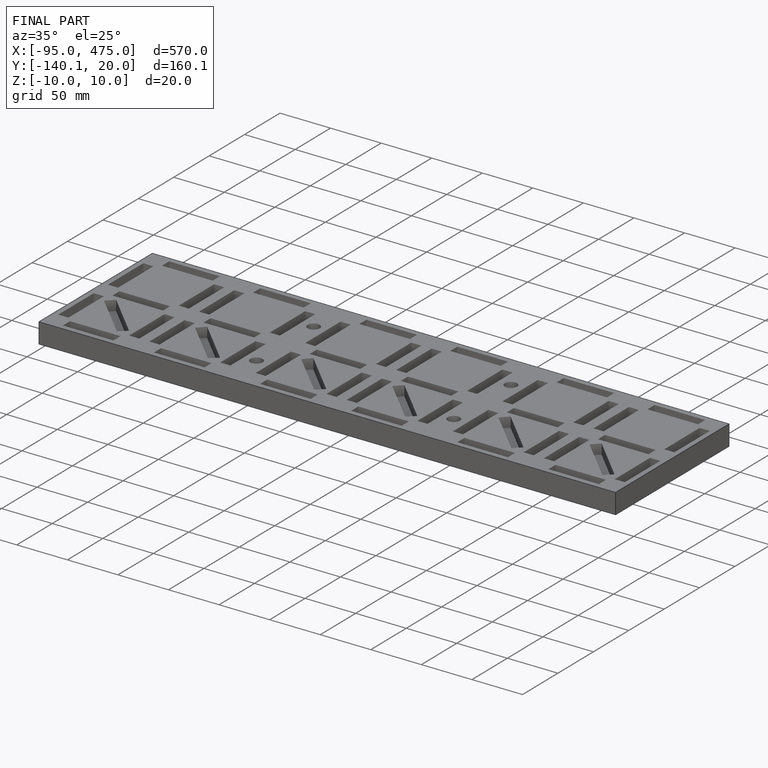
[diagram: finished part — iso view with bounding-box wireframe]
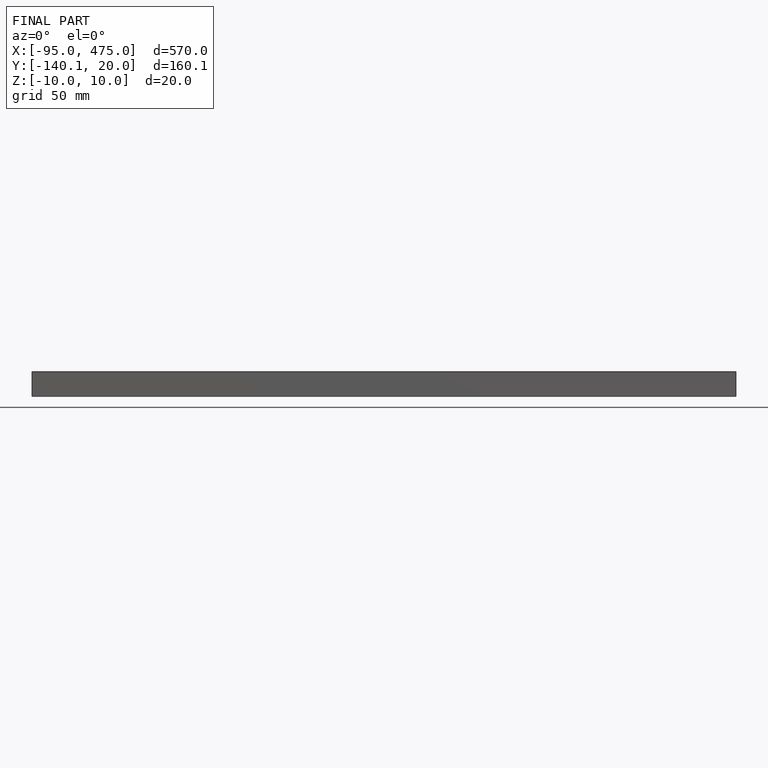
[diagram: finished part — front view with bounding-box wireframe]
